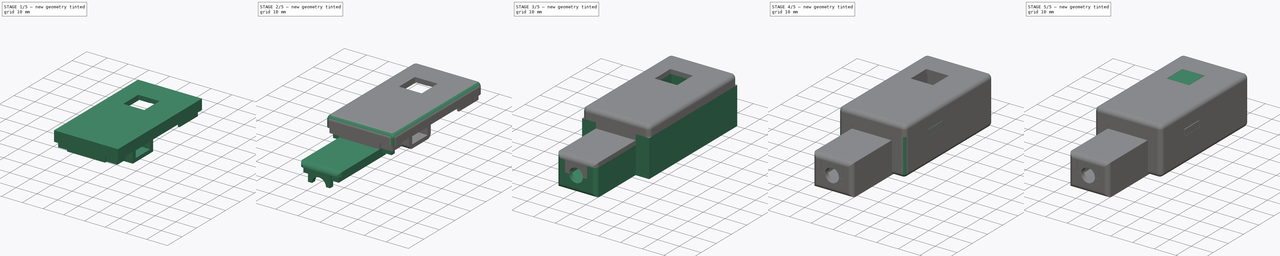
[diagram: build sequence overview — one tinted view per stage of 5, left to right]
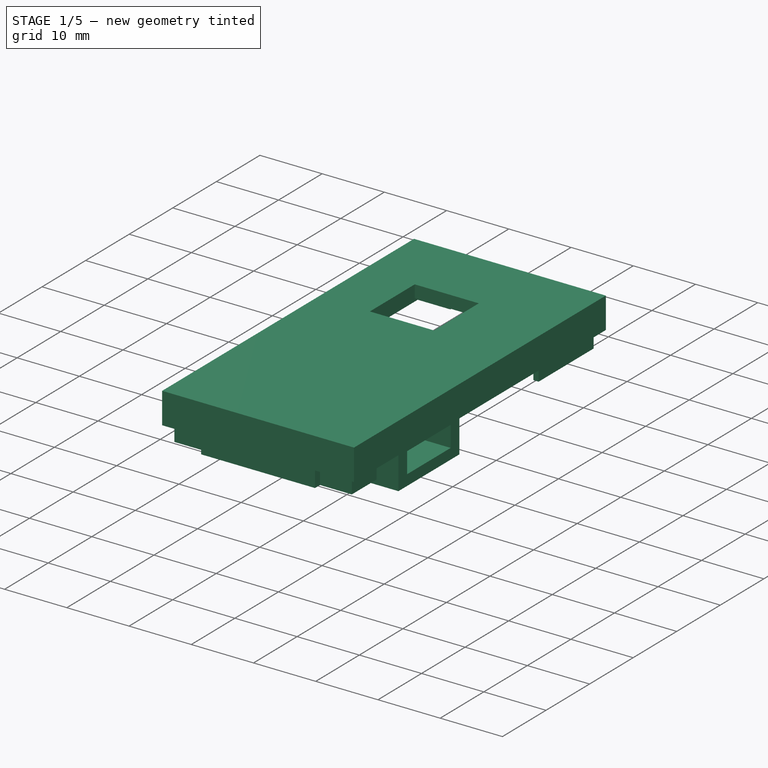
[diagram: stage 1 of 5 — iso view after this stage's code; geometry added in this stage tinted green]
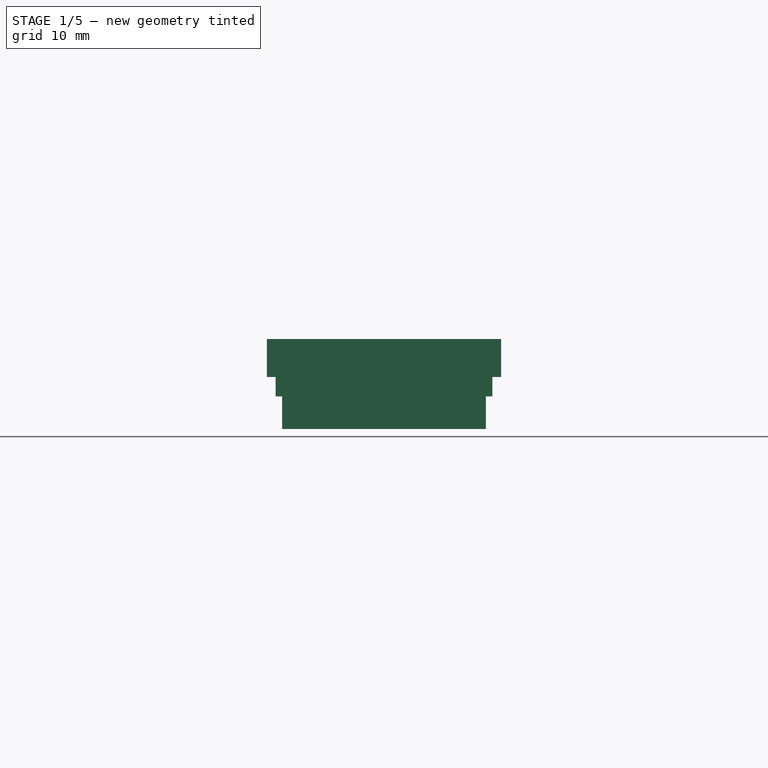
[diagram: stage 1 of 5 — front view after this stage's code; geometry added in this stage tinted green]
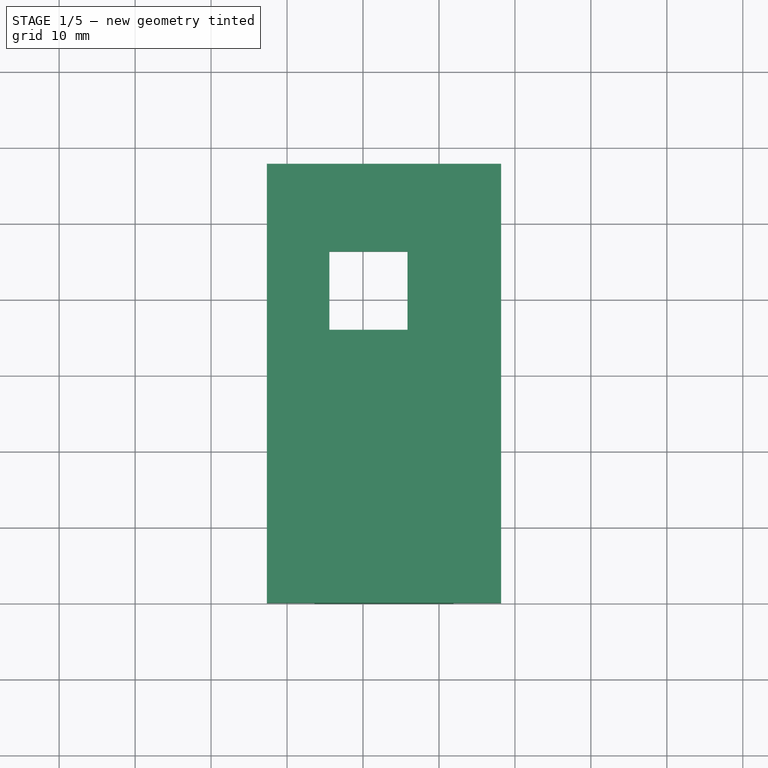
[diagram: stage 1 of 5 — top view after this stage's code; geometry added in this stage tinted green]
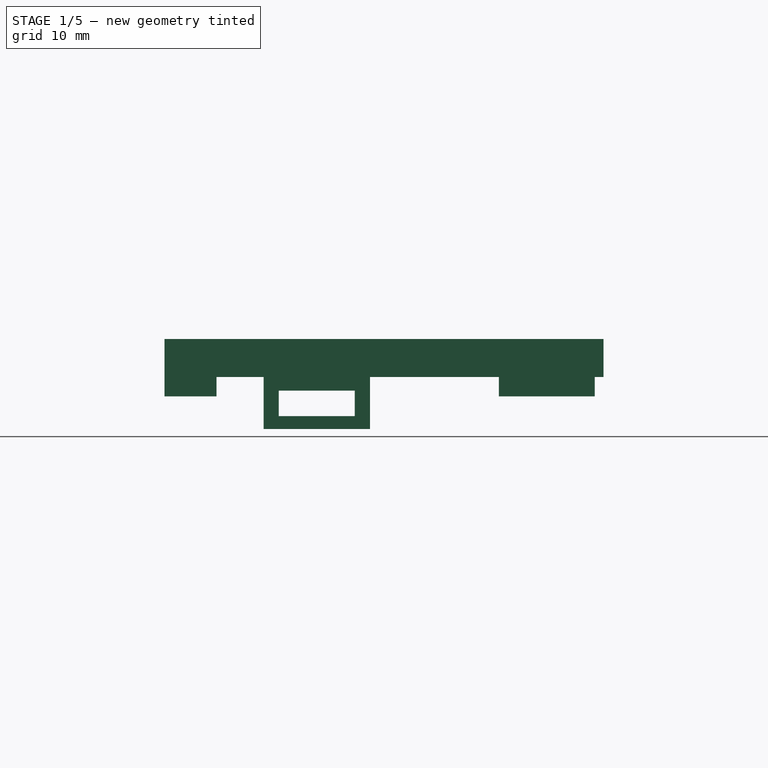
[diagram: stage 1 of 5 — right view after this stage's code; geometry added in this stage tinted green]
FCSTD DOCUMENT  (FreeCAD 0.18R4 (GitTag))
Label: Case
License: All rights reserved
LicenseURL: http://en.wikipedia.org/wiki/All_rights_reserved
objects: Sketcher::SketchObject×32, PartDesign::Pad×21, PartDesign::Pocket×11, PartDesign::Body×6, PartDesign::Fillet×4, Spreadsheet::Sheet×1
note: 106 computed .brp shape members not serialized (recipe doc carries the construction recipe); baked Part::Feature solids carry a one-line shape summary decoded from their .brp

FEATURE [Sketcher::SketchObject] Sketch011  label="CaseBSketch1"
  AttachmentOffset = pos=(0,0,12) rot=(0,0,1;0rad)
  MapMode = 5
  Placement = pos=(0,0,12) rot=(0,0,1;0rad)
  Support = -> [XY_Plane002]
  expr: Constraints[11] = CaseASketch1.Constraints.HEIGHT
  expr: Constraints[10] = CaseASketch1.Constraints.WIDTH
  expr: Constraints[9] = CaseASketch1.Constraints.Y
  expr: Constraints[8] = CaseASketch1.Constraints.X
  expr: AttachmentOffset.Base.z = Params.TOTAL_D
  sketch-geometry (4):
    g0: LineSegment StartX=-2.65 StartY=47.75 StartZ=0 EndX=28.177 EndY=47.75 EndZ=0
    g1: LineSegment StartX=28.177 StartY=47.75 StartZ=0 EndX=28.177 EndY=-10.05 EndZ=0
    g2: LineSegment StartX=28.177 StartY=-10.05 StartZ=0 EndX=-2.65 EndY=-10.05 EndZ=0
    g3: LineSegment StartX=-2.65 StartY=-10.05 StartZ=0 EndX=-2.65 EndY=47.75 EndZ=0
  constraints (12):
    c: Coincident(g0,g1)
    c: Coincident(g1,g2)
    c: Coincident(g2,g3)
    c: Coincident(g3,g0)
    c: Horizontal(g0)
    c: Horizontal(g2)
    c: Vertical(g1)
    c: Vertical(g3)
    c: DistanceX(g2,g-1) = 2.65
    c: DistanceY(g2,g-1) = 10.05
    c: DistanceX(g0,g0) = 30.827
    c: DistanceY(g1,g1) = 57.8
FEATURE [PartDesign::Pad] Pad007  label="CaseBPad1"
  Length = 5
  Length2 = 100
  Profile = -> Sketch011
  Type = 0
  expr: Length = Params.SWITCH_D
FEATURE [Sketcher::SketchObject] Sketch012  label="CaseBVSketch2"
  AttachmentOffset = pos=(0,0,17) rot=(0,0,1;0rad)
  MapMode = 5
  Placement = pos=(0,0,17) rot=(0,0,1;0rad)
  Support = -> [XY_Plane002]
  expr: Constraints[11] = Params.SWITCH_W + 2 * Params.GAP_XY
  expr: Constraints[10] = Params.SWITCH_H + 2 * Params.GAP_XY
  expr: Constraints[9] = Params.PIN_Y + Params.SWITCH_Y - Params.GAP_XY
  expr: Constraints[8] = Params.PIN_X + Params.SWITCH_X - Params.GAP_XY
  expr: AttachmentOffset.Base.z = Params.TOTAL_D + Params.SWITCH_D
  sketch-geometry (4):
    g0: LineSegment StartX=5.565 StartY=36.185 StartZ=0 EndX=15.865 EndY=36.185 EndZ=0
    g1: LineSegment StartX=15.865 StartY=36.185 StartZ=0 EndX=15.865 EndY=25.885 EndZ=0
    g2: LineSegment StartX=15.865 StartY=25.885 StartZ=0 EndX=5.565 EndY=25.885 EndZ=0
    g3: LineSegment StartX=5.565 StartY=25.885 StartZ=0 EndX=5.565 EndY=36.185 EndZ=0
  constraints (12):
    c: Coincident(g0,g1)
    c: Coincident(g1,g2)
    c: Coincident(g2,g3)
    c: Coincident(g3,g0)
    c: Horizontal(g0)
    c: Horizontal(g2)
    c: Vertical(g1)
    c: Vertical(g3)
    c: DistanceX(g-1,g2) = 5.565
    c: DistanceY(g-1,g2) = 25.885
    c: DistanceY(g3,g3) = 10.3
    c: DistanceX(g0,g0) = 10.3
FEATURE [PartDesign::Pocket] Pocket004  label="CaseBPocket1"
  BaseFeature = -> Pad007
  Length = 5
  Length2 = 100
  Profile = -> Sketch012
  Type = 1
FEATURE [Sketcher::SketchObject] Sketch013  label="CaseBSketch3"
  AttachmentOffset = pos=(0,0,15) rot=(0,0,1;0rad)
  MapMode = 5
  Placement = pos=(0,0,15) rot=(0,0,1;0rad)
  Support = -> [XY_Plane002]
  expr: Constraints[11] = CaseASketch1.Constraints.HEIGHT - 2 * Params.WALL
  expr: Constraints[10] = CaseASketch1.Constraints.WIDTH - 2 * Params.WALL
  expr: Constraints[9] = CaseASketch1.Constraints.X - Params.WALL
  expr: Constraints[8] = CaseASketch1.Constraints.Y - Params.WALL
  expr: AttachmentOffset.Base.z = Params.TOTAL_D + Params.SWITCH_D - Params.WALL
  sketch-geometry (4):
    g0: LineSegment StartX=-0.65 StartY=45.75 StartZ=0 EndX=26.177 EndY=45.75 EndZ=0
    g1: LineSegment StartX=26.177 StartY=45.75 StartZ=0 EndX=26.177 EndY=-8.05 EndZ=0
    g2: LineSegment StartX=26.177 StartY=-8.05 StartZ=0 EndX=-0.65 EndY=-8.05 EndZ=0
    g3: LineSegment StartX=-0.65 StartY=-8.05 StartZ=0 EndX=-0.65 EndY=45.75 EndZ=0
  constraints (12):
    c: Coincident(g0,g1)
    c: Coincident(g1,g2)
    c: Coincident(g2,g3)
    c: Coincident(g3,g0)
    c: Horizontal(g0)
    c: Horizontal(g2)
    c: Vertical(g1)
    c: Vertical(g3)
    c: DistanceY(g2,g-1) = 8.05
    c: DistanceX(g2,g-1) = 0.65
    c: DistanceX(g2,g2) = 26.827
    c: DistanceY(g1,g1) = 53.8
FEATURE [PartDesign::Pocket] Pocket005  label="CaseBPocket2"
  BaseFeature = -> Pocket004
  Length = 5
  Length2 = 100
  Profile = -> Sketch013
  Type = 1
FEATURE [Sketcher::SketchObject] Sketch014  label="CaseBSketch4"
  AttachmentOffset = pos=(0,0,12) rot=(0,0,1;0rad)
  MapMode = 5
  Placement = pos=(0,0,12) rot=(0,0,1;0rad)
  Support = -> [XY_Plane002]
  expr: Constraints[43] = CaseASketch4.Constraints.LATCH_H2 - 2 * Params.GAP_XY
  expr: Constraints[36] = CaseASketch4.Constraints.LATCH_W - 2 * Params.GAP_XY
  expr: AttachmentOffset.Base.z = Params.TOTAL_D
  expr: Constraints[42] = CaseASketch4.Constraints.LATCH_H - 2 * Params.GAP_XY
  expr: Constraints[35] = Params.SPACE_XY + Params.GAP_XY
  expr: Constraints[41] = Params.BOARD_W + 2 * (Params.SPACE_XY + Params.GAP_XY)
  expr: Constraints[32] = Params.WALL / 2 - Params.GAP_XY
  expr: Constraints[40] = CaseASketch4.Constraints.LATCH_Y2 - Params.GAP_XY
  expr: Constraints[39] = CaseASketch4.Constraints.LATCH_Y + Params.GAP_XY
  sketch-geometry (16):
    g0: LineSegment StartX=-1.5 StartY=33.975 StartZ=0 EndX=-0.65 EndY=33.975 EndZ=0
    g1: LineSegment StartX=-0.65 StartY=33.975 StartZ=0 EndX=-0.65 EndY=45.75 EndZ=0
    g2: LineSegment StartX=-0.65 StartY=45.75 StartZ=0 EndX=4.58175 EndY=45.75 EndZ=0
    g3: LineSegment StartX=4.58175 StartY=45.75 StartZ=0 EndX=4.58175 EndY=46.6 EndZ=0
    g4: LineSegment StartX=4.58175 StartY=46.6 StartZ=0 EndX=-1.5 EndY=46.6 EndZ=0
    g5: LineSegment StartX=-1.5 StartY=46.6 StartZ=0 EndX=-1.5 EndY=33.975 EndZ=0
    g6: LineSegment StartX=20.9453 StartY=46.6 StartZ=0 EndX=27.027 EndY=46.6 EndZ=0
    g7: LineSegment StartX=27.027 StartY=46.6 StartZ=0 EndX=27.027 EndY=33.975 EndZ=0
    g8: LineSegment StartX=27.027 StartY=33.975 StartZ=0 EndX=26.177 EndY=33.975 EndZ=0
    g9: LineSegment StartX=26.177 StartY=33.975 StartZ=0 EndX=26.177 EndY=45.75 EndZ=0
    g10: LineSegment StartX=26.177 StartY=45.75 StartZ=0 EndX=20.9453 EndY=45.75 EndZ=0
    g11: LineSegment StartX=20.9453 StartY=45.75 StartZ=0 EndX=20.9453 EndY=46.6 EndZ=0
    g12: LineSegment StartX=-1.5 StartY=-3.2 StartZ=0 EndX=-1.5 EndY=-8.9 EndZ=0
    g13: LineSegment StartX=-1.5 StartY=-3.2 StartZ=0 EndX=27.027 EndY=-3.2 EndZ=0
    g14: LineSegment StartX=27.027 StartY=-3.2 StartZ=0 EndX=27.027 EndY=-8.9 EndZ=0
    g15: LineSegment StartX=27.027 StartY=-8.9 StartZ=0 EndX=-1.5 EndY=-8.9 EndZ=0
  constraints (48):
    c: Horizontal(g0)
    c: Coincident(g0,g1)
    c: Vertical(g1)
    c: Coincident(g1,g2)
    c: Horizontal(g2)
    c: Coincident(g2,g3)
    c: Vertical(g3)
    c: Coincident(g3,g4)
    c: Horizontal(g4)
    c: Coincident(g4,g5)
    c: Vertical(g5)
    c: Coincident(g0,g5)
    c: Horizontal(g6)
    c: Coincident(g6,g7)
    c: Vertical(g7)
    c: Coincident(g7,g8)
    c: Horizontal(g8)
    c: Coincident(g8,g9)
    c: Vertical(g9)
    c: Coincident(g9,g10)
    c: Horizontal(g10)
    c: Coincident(g10,g11)
    c: Coincident(g11,g6)
    c: Vertical(g11)
    c: Vertical(g12)
    c: Coincident(g13,g14)
    c: Vertical(g14)
    c: Coincident(g14,g15)
    c: Horizontal(g15)
    c: Horizontal(g13)
    c: Equal(g3,g11)
    c: Horizontal(g2,g10)
    c: DistanceX(g0,g0) = 0.85
    c: Equal(g0,g3)
    c: Equal(g11,g8)
    c: DistanceX(g0,g-1) = 0.65
    c: DistanceX(g4,g4) = 6.08175
    c: Equal(g6,g4)
    c: Horizontal(g0,g8)
    c: DistanceY(g-1,g0) = 33.975
    c: DistanceY(g-1,g4) = 46.6
    c: DistanceX(g0,g8) = 26.827
    c: DistanceY(g12,g4) = 55.5
    c: DistanceY(g12,g12) = 5.7
    c: Coincident(g15,g12)
    c: Coincident(g12,g13)
    c: Vertical(g12,g0)
    c: Vertical(g13,g7)
FEATURE [PartDesign::Pad] Pad008  label="CaseBPad2"
  BaseFeature = -> Pocket005
  Length = 2.55
  Length2 = 100
  Profile = -> Sketch014
  Reversed = true
  Type = 0
  expr: Length = Params.CASE_A_L + Params.GAP_Z
FEATURE [Sketcher::SketchObject] Sketch015  label="CaseBSketch5"
  AttachmentOffset = pos=(0,0,9.45) rot=(0,0,1;0rad)
  MapMode = 5
  Placement = pos=(0,0,9.45) rot=(0,0,1;0rad)
  Support = -> [XY_Plane002]
  expr: Constraints[11] = Params.USB_H - Params.USB_Y + Params.SPACE_XY + Params.GAP_XY + 2 * Params.WALL
  expr: Constraints[10] = CaseASketch2.Constraints.EDGE_W - Params.SPACE_XY
  expr: Constraints[9] = Params.BOARD_W + 2 * Params.SPACE_XY - 2 * CaseASketch2.Constraints.EDGE_W
  expr: Constraints[8] = Params.WALL
  expr: AttachmentOffset.Base.z = Params.TOTAL_D - Params.CASE_A_L - Params.GAP_Z
  sketch-geometry (4):
    g0: LineSegment StartX=3.6135 StartY=-10.05 StartZ=0 EndX=21.9135 EndY=-10.05 EndZ=0
    g1: LineSegment StartX=21.9135 StartY=-10.05 StartZ=0 EndX=21.9135 EndY=-8.05 EndZ=0
    g2: LineSegment StartX=21.9135 StartY=-8.05 StartZ=0 EndX=3.6135 EndY=-8.05 EndZ=0
    g3: LineSegment StartX=3.6135 StartY=-8.05 StartZ=0 EndX=3.6135 EndY=-10.05 EndZ=0
  constraints (12):
    c: Coincident(g0,g1)
    c: Coincident(g1,g2)
    c: Coincident(g2,g3)
    c: Coincident(g3,g0)
    c: Horizontal(g0)
    c: Horizontal(g2)
    c: Vertical(g1)
    c: Vertical(g3)
    c: DistanceY(g3,g3) = 2
    c: DistanceX(g2,g2) = 18.3
    c: DistanceX(g-1,g2) = 3.6135
    c: DistanceY(g2,g-1) = 8.05
FEATURE [PartDesign::Pad] Pad009  label="CaseBPad3"
  BaseFeature = -> Pad008
  Length = 2.55
  Length2 = 100
  Profile = -> Sketch015
  Type = 0
  expr: Length = Params.CASE_A_L + Params.GAP_Z
FEATURE [Sketcher::SketchObject] Sketch017  label="CaseBSketch6"
  AttachmentOffset = pos=(0,0,-0.65) rot=(0,0,1;0rad)
  MapMode = 5
  Placement = pos=(-0.65,1e-16,-1e-16) rot=(0.57735,0.57735,0.57735;2.0944rad)
  Support = -> [YZ_Plane002]
  expr: Constraints[23] = Params.WALL
  expr: Constraints[21] = Params.TOTAL_D + Params.SWITCH_D - Params.WALL
  expr: Constraints[20] = Params.BOARD_D + Params.TF_D + Params.GAP_Z + 0.3mm
  expr: Constraints.INNER_W = 5 * Params.WALL
  expr: Constraints[18] = Params.CASE_A_LY
  expr: Constraints.OUTER_W = Constraints.INNER_W + 2 * Params.WALL
  expr: Constraints[17] = 1.5 * Params.WALL + 3 * Params.GAP_Z + Params.CASE_A_BL
  expr: Constraints[16] = Params.TOTAL_D - Params.WALL + Params.CASE_A_BL
  expr: AttachmentOffset.Base.z = -(Params.SPACE_XY + Params.GAP_XY)
  sketch-geometry (8):
    g0: LineSegment StartX=3 StartY=15 StartZ=0 EndX=17 EndY=15 EndZ=0
    g1: LineSegment StartX=17 StartY=15 StartZ=0 EndX=17 EndY=5.15 EndZ=0
    g2: LineSegment StartX=17 StartY=5.15 StartZ=0 EndX=3 EndY=5.15 EndZ=0
    g3: LineSegment StartX=3 StartY=5.15 StartZ=0 EndX=3 EndY=15 EndZ=0
    g4: LineSegment StartX=5 StartY=10.2 StartZ=0 EndX=15 EndY=10.2 EndZ=0
    g5: LineSegment StartX=15 StartY=10.2 StartZ=0 EndX=15 EndY=6.85 EndZ=0
    g6: LineSegment StartX=15 StartY=6.85 StartZ=0 EndX=5 EndY=6.85 EndZ=0
    g7: LineSegment StartX=5 StartY=6.85 StartZ=0 EndX=5 EndY=10.2 EndZ=0
  constraints (24):
    c: Coincident(g0,g1)
    c: Coincident(g1,g2)
    c: Coincident(g2,g3)
    c: Coincident(g3,g0)
    c: Horizontal(g0)
    c: Horizontal(g2)
    c: Vertical(g1)
    c: Vertical(g3)
    c: Coincident(g4,g5)
    c: Coincident(g5,g6)
    c: Coincident(g6,g7)
    c: Coincident(g7,g4)
    c: Horizontal(g4)
    c: Horizontal(g6)
    c: Vertical(g5)
    c: Vertical(g7)
    c: DistanceY(g-1,g4) = 10.2
    c: DistanceY(g7,g7) = 3.35
    c: DistanceX(g-1,g6) = 5
    c: DistanceX(g6,g6) = 10  'INNER_W'
    c: DistanceY(g-1,g2) = 5.15
    c: DistanceY(g-1,g0) = 15
    c: DistanceX(g0,g0) = 14  'OUTER_W'
    c: DistanceX(g2,g6) = 2
FEATURE [PartDesign::Pad] Pad010  label="CaseBPad4"
  BaseFeature = -> Pad009
  Length = 26.827
  Length2 = 100
  Profile = -> Sketch017
  Type = 0
  expr: Length = Params.BOARD_W + 2 * (Params.SPACE_XY + Params.GAP_XY)
FEATURE [Sketcher::SketchObject] Sketch020  label="CaseBSketch7"
  AttachmentOffset = pos=(0,0,16.95) rot=(0,0,1;0rad)
  MapMode = 5
  Placement = pos=(0,0,16.95) rot=(0,0,1;0rad)
  Support = -> [XY_Plane002]
  expr: Constraints[11] = Params.LED_H
  expr: Constraints[10] = Params.LED_W
  expr: Constraints[9] = Params.PIN_Y + Params.LED_Y
  expr: Constraints[8] = Params.PIN_X + Params.LED_X
  expr: AttachmentOffset.Base.z = Params.TOTAL_D + Params.SWITCH_D - Params.GAP_Z
  sketch-geometry (4):
    g0: LineSegment StartX=21.61 StartY=43.454 StartZ=0 EndX=25.11 EndY=43.454 EndZ=0
    g1: LineSegment StartX=25.11 StartY=43.454 StartZ=0 EndX=25.11 EndY=40.654 EndZ=0
    g2: LineSegment StartX=25.11 StartY=40.654 StartZ=0 EndX=21.61 EndY=40.654 EndZ=0
    g3: LineSegment StartX=21.61 StartY=40.654 StartZ=0 EndX=21.61 EndY=43.454 EndZ=0
  constraints (12):
    c: Coincident(g0,g1)
    c: Coincident(g1,g2)
    c: Coincident(g2,g3)
    c: Coincident(g3,g0)
    c: Horizontal(g0)
    c: Horizontal(g2)
    c: Vertical(g1)
    c: Vertical(g3)
    c: DistanceX(g-1,g2) = 21.61
    c: DistanceY(g-1,g2) = 40.654
    c: DistanceX(g2,g2) = 3.5
    c: DistanceY(g1,g1) = 2.8
FEATURE [PartDesign::Pocket] Pocket007  label="CaseBPocket3"
  BaseFeature = -> Pad010
  Length = 5
  Length2 = 100
  Profile = -> Sketch020
  Refine = true
  Type = 1
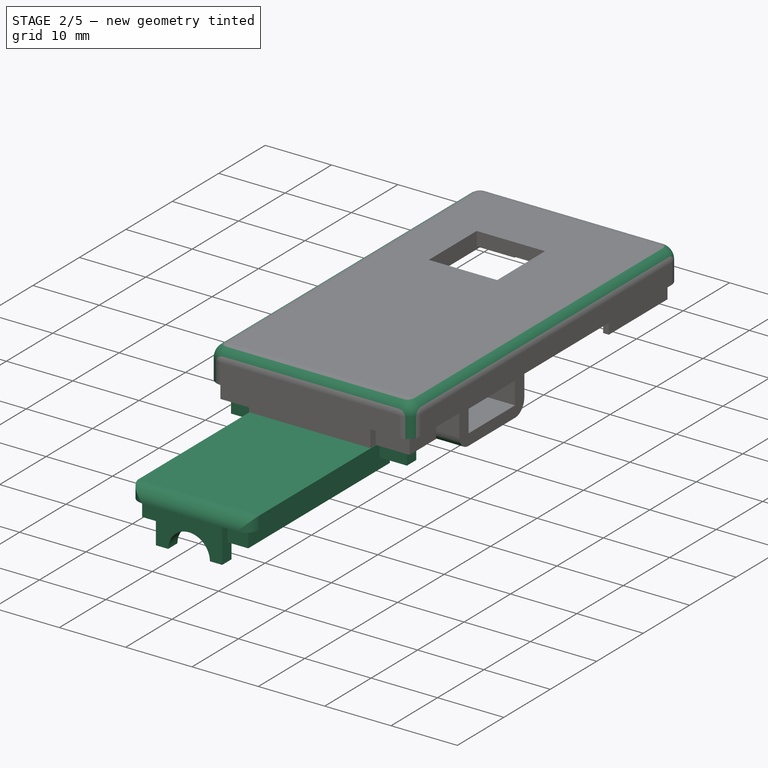
[diagram: stage 2 of 5 — iso view after this stage's code; geometry added in this stage tinted green]
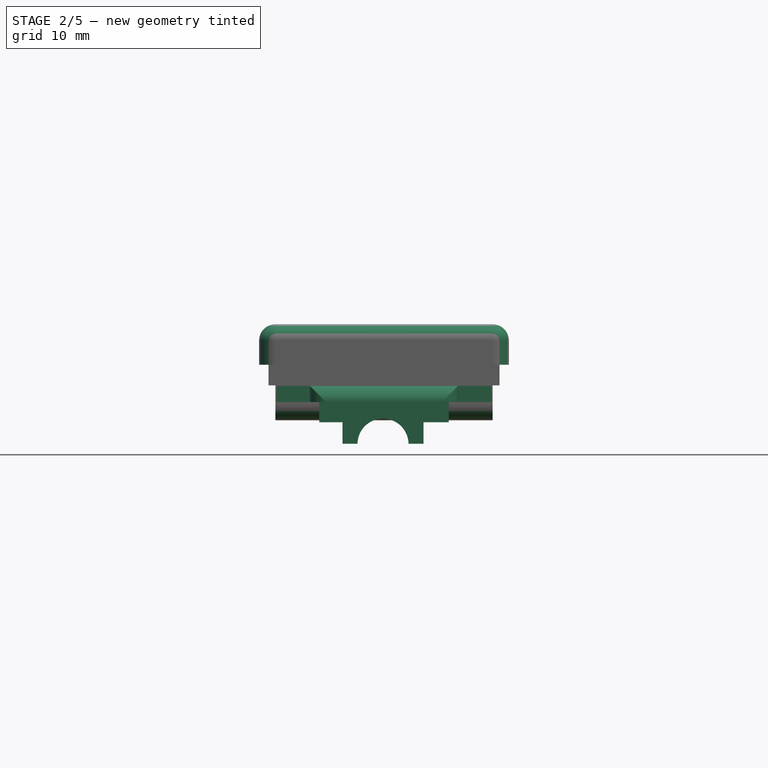
[diagram: stage 2 of 5 — front view after this stage's code; geometry added in this stage tinted green]
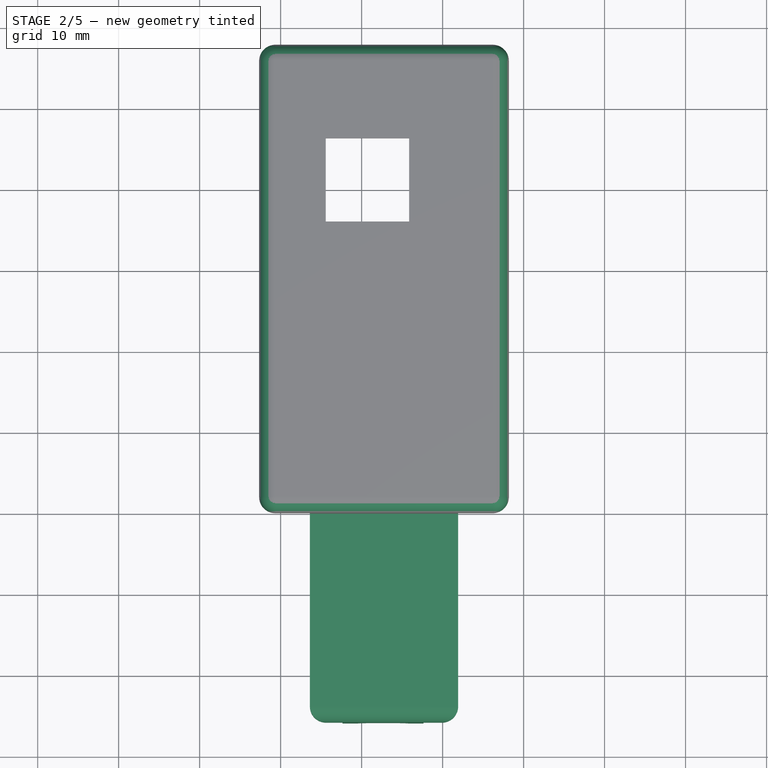
[diagram: stage 2 of 5 — top view after this stage's code; geometry added in this stage tinted green]
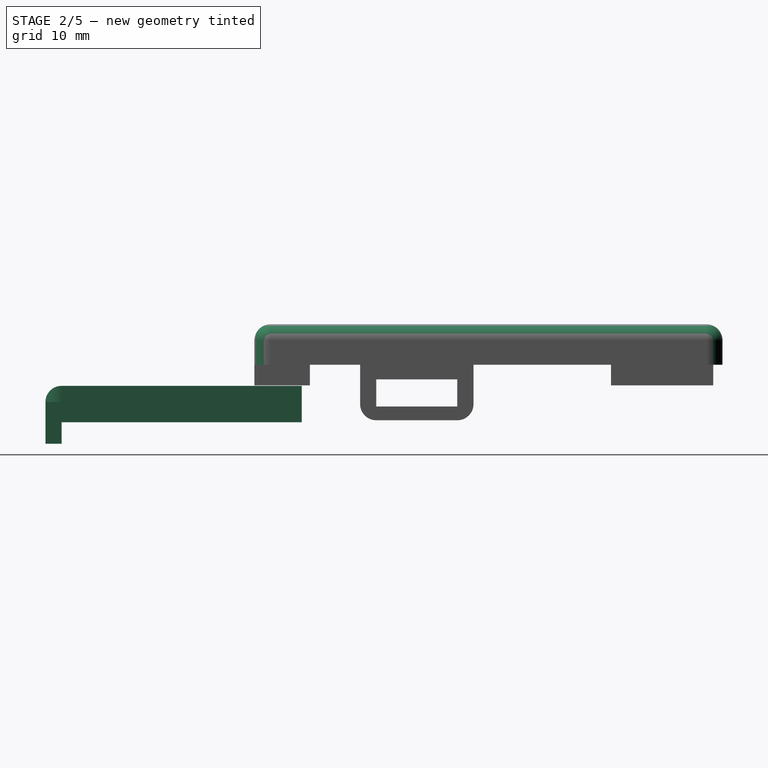
[diagram: stage 2 of 5 — right view after this stage's code; geometry added in this stage tinted green]
FEATURE [Sketcher::SketchObject] Sketch026  label="ConBSketch1"
  AttachmentOffset = pos=(0,0,7.4) rot=(0,0,1;0rad)
  MapMode = 5
  Placement = pos=(0,0,7.4) rot=(0,0,1;0rad)
  Support = -> [XY_Plane007]
  expr: AttachmentOffset.Base.z = Params.TOTAL_D - Params.CASE_A_L - Params.WALL - 2 * Params.GAP_Z
  expr: Constraints[29] = Params.BOARD_W - 2 * Sketch022.Constraints.X
  expr: Constraints[21] = Params.BOARD_W
  expr: Constraints[28] = Sketch022.Constraints.H
  expr: Constraints[24] = Sketch022.Constraints.X + Params.SPACE_XY
  expr: Constraints[35] = Params.WALL
  expr: Constraints[18] = Params.WALL - Params.GAP_XY
  expr: Constraints[17] = Sketch022.Constraints.X
  expr: Constraints[22] = Sketch022.Constraints.X
  expr: Constraints[19] = Params.USB_H - Params.USB_Y + Params.SPACE_XY + 2 * Params.GAP_XY
  sketch-geometry (14):
    g0: LineSegment StartX=3.6135 StartY=-4.2 StartZ=0 EndX=3.6135 EndY=-6.05 EndZ=0
    g1: LineSegment StartX=3.6135 StartY=-6.05 StartZ=0 EndX=-0.5 EndY=-6.05 EndZ=0
    g2: LineSegment StartX=-0.5 StartY=-6.05 StartZ=0 EndX=-0.5 EndY=-8.05 EndZ=0
    g3: LineSegment StartX=-0.5 StartY=-8.05 StartZ=0 EndX=3.6135 EndY=-8.05 EndZ=0
    g4: LineSegment StartX=21.9135 StartY=-4.2 StartZ=0 EndX=21.9135 EndY=-6.05 EndZ=0
    g5: LineSegment StartX=21.9135 StartY=-6.05 StartZ=0 EndX=26.027 EndY=-6.05 EndZ=0
    g6: LineSegment StartX=26.027 StartY=-6.05 StartZ=0 EndX=26.027 EndY=-8.05 EndZ=0
    g7: LineSegment StartX=26.027 StartY=-8.05 StartZ=0 EndX=21.9135 EndY=-8.05 EndZ=0
    g8: LineSegment StartX=21.9135 StartY=-35.85 StartZ=0 EndX=3.6135 EndY=-35.85 EndZ=0
    g9: GeomPoint X=25.527 Y=0 Z=0
    g10: LineSegment StartX=3.6135 StartY=-4.2 StartZ=0 EndX=21.9135 EndY=-4.2 EndZ=0
    g11: GeomPoint X=12.7635 Y=0 Z=0
    g12: LineSegment StartX=21.9135 StartY=-8.05 StartZ=0 EndX=21.9135 EndY=-35.85 EndZ=0
    g13: LineSegment StartX=3.6135 StartY=-35.85 StartZ=0 EndX=3.6135 EndY=-8.05 EndZ=0
  constraints (39):
    c: Vertical(g0)
    c: Coincident(g0,g1)
    c: Horizontal(g1)
    c: Coincident(g1,g2)
    c: Vertical(g2)
    c: Coincident(g2,g3)
    c: Horizontal(g3)
    c: Vertical(g4)
    c: Coincident(g4,g5)
    c: Horizontal(g5)
    c: Coincident(g5,g6)
    c: Vertical(g6)
    c: Coincident(g6,g7)
    c: Horizontal(g7)
    c: Horizontal(g8)
    c: Equal(g1,g5)
    c: Equal(g4,g0)
    c: DistanceX(g-1,g0) = 3.6135
    c: DistanceY(g0,g0) = 1.85
    c: DistanceY(g0,g-1) = 4.2
    c: PointOnObject(g9,g-1)
    c: DistanceX(g-1,g9) = 25.527
    c: DistanceX(g4,g9) = 3.6135
    c: Vertical(g0,g3)
    c: DistanceX(g1,g1) = 4.1135
    c: Coincident(g10,g0)
    c: Horizontal(g10)
    c: Equal(g6,g2)
    c: DistanceY(g13,g0) = 31.65
    c: DistanceX(g13,g8) = 18.3
    c: Symmetric(g-1,g9,g11)
    c: Coincident(g12,g7)
    c: Vertical(g12)
    c: Coincident(g8,g12)
    c: Coincident(g13,g3)
    c: DistanceY(g6,g6) = 2
    c: Coincident(g10,g4)
    c: Coincident(g8,g13)
    c: Vertical(g13)
FEATURE [PartDesign::Pad] Pad016  label="ConBPad1"
  Length = 2
  Length2 = 100
  Profile = -> Sketch026
  Type = 0
  expr: Length = Params.WALL
FEATURE [Sketcher::SketchObject] Sketch027  label="ConBSketch2"
  AttachmentOffset = pos=(0,0,4.9) rot=(0,0,1;0rad)
  MapMode = 5
  Placement = pos=(0,0,4.9) rot=(0,0,1;0rad)
  Support = -> [XY_Plane007]
  expr: Constraints[20] = ConASketch1.Constraints.H - Params.WALL / 2 - Params.GAP_XY
  expr: Constraints[16] = Params.WALL / 2 - Params.GAP_XY
  expr: AttachmentOffset.Base.z = Params.TOTAL_D - 2 * Params.CASE_A_L - Params.WALL - 2 * Params.GAP_Z
  expr: Constraints[18] = Params.USB_H - Params.USB_Y + Params.SPACE_XY + 2 * Params.GAP_XY
  expr: Constraints[23] = Params.WALL / 2 - Params.GAP_XY
  expr: Constraints[19] = Params.BOARD_W - 2 * ConASketch1.Constraints.X - Params.WALL - 2 * Params.GAP_XY
  expr: Constraints[17] = ConASketch1.Constraints.X + Params.WALL / 2 + Params.GAP_XY
  sketch-geometry (8):
    g0: LineSegment StartX=4.7635 StartY=-4.2 StartZ=0 EndX=4.7635 EndY=-34.7 EndZ=0
    g1: LineSegment StartX=5.6135 StartY=-33.85 StartZ=0 EndX=5.6135 EndY=-4.2 EndZ=0
    g2: LineSegment StartX=5.6135 StartY=-4.2 StartZ=0 EndX=4.7635 EndY=-4.2 EndZ=0
    g3: LineSegment StartX=4.7635 StartY=-34.7 StartZ=0 EndX=20.7635 EndY=-34.7 EndZ=0
    g4: LineSegment StartX=20.7635 StartY=-34.7 StartZ=0 EndX=20.7635 EndY=-4.2 EndZ=0
    g5: LineSegment StartX=20.7635 StartY=-4.2 StartZ=0 EndX=19.9135 EndY=-4.2 EndZ=0
    g6: LineSegment StartX=19.9135 StartY=-4.2 StartZ=0 EndX=19.9135 EndY=-33.85 EndZ=0
    g7: LineSegment StartX=19.9135 StartY=-33.85 StartZ=0 EndX=5.6135 EndY=-33.85 EndZ=0
  constraints (24):
    c: Vertical(g0)
    c: Vertical(g1)
    c: Coincident(g1,g2)
    c: Coincident(g2,g0)
    c: Horizontal(g2)
    c: Horizontal(g3)
    c: Coincident(g3,g4)
    c: Vertical(g4)
    c: Coincident(g4,g5)
    c: Horizontal(g5)
    c: Coincident(g5,g6)
    c: Vertical(g6)
    c: Coincident(g6,g7)
    c: Horizontal(g7)
    c: Horizontal(g5,g1)
    c: Equal(g2,g5)
    c: DistanceX(g2,g2) = 0.85
    c: DistanceX(g-1,g0) = 4.7635
    c: DistanceY(g0,g-1) = 4.2
    c: DistanceX(g0,g3) = 16
    c: DistanceY(g0,g0) = 30.5
    c: Coincident(g1,g7)
    c: Coincident(g0,g3)
    c: DistanceY(g3,g6) = 0.85
FEATURE [PartDesign::Pad] Pad017  label="ConBPad2"
  BaseFeature = -> Pad016
  Length = 2.5
  Length2 = 100
  Profile = -> Sketch027
  Type = 0
  expr: Length = Params.CASE_A_L
FEATURE [PartDesign::Body] Body001  label="CaseA"
  Group = -> [Sketch006,Pad006,Sketch007,Pocket,Sketch009,Pocket002,Sketch010,Pocket003,Sketch016,Pocket006,Sketch019,Pad012,Fillet]
  Origin = -> Origin001
  Tip = -> Fillet
FEATURE [Sketcher::SketchObject] Sketch031  label="ConBSketch3"
  AttachmentOffset = pos=(0,0,5.7) rot=(0,0,1;0rad)
  MapMode = 5
  Placement = pos=(0,0,5.7) rot=(0,0,1;0rad)
  Support = -> [XY_Plane007]
  expr: Constraints[21] = 2 * Params.WALL
  expr: Constraints[20] = 2 * Params.WALL
  expr: Constraints[23] = 5 * Params.WALL
  expr: Constraints[19] = Params.BOARD_W - 2 * Sketch022.Constraints.X
  expr: Constraints[18] = Sketch022.Constraints.H
  expr: Constraints[22] = 3 * Params.WALL
  expr: Constraints[17] = Params.USB_H - Params.USB_Y + Params.SPACE_XY + 2 * Params.GAP_XY
  expr: Constraints[16] = Sketch022.Constraints.X
  expr: AttachmentOffset.Base.z = Params.BOARD_D + Params.USB_D / 2 + Params.USB_CON_D / 2
  sketch-geometry (8):
    g0: LineSegment StartX=7.6135 StartY=-10.2 StartZ=0 EndX=17.9135 EndY=-10.2 EndZ=0
    g1: LineSegment StartX=17.9135 StartY=-10.2 StartZ=0 EndX=17.9135 EndY=-25.85 EndZ=0
    g2: LineSegment StartX=17.9135 StartY=-25.85 StartZ=0 EndX=7.6135 EndY=-25.85 EndZ=0
    g3: LineSegment StartX=7.6135 StartY=-25.85 StartZ=0 EndX=7.6135 EndY=-10.2 EndZ=0
    g4: LineSegment [constr] StartX=3.6135 StartY=-4.2 StartZ=0 EndX=21.9135 EndY=-4.2 EndZ=0
    g5: LineSegment [constr] StartX=21.9135 StartY=-4.2 StartZ=0 EndX=21.9135 EndY=-35.85 EndZ=0
    g6: LineSegment [constr] StartX=21.9135 StartY=-35.85 StartZ=0 EndX=3.6135 EndY=-35.85 EndZ=0
    g7: LineSegment [constr] StartX=3.6135 StartY=-35.85 StartZ=0 EndX=3.6135 EndY=-4.2 EndZ=0
  constraints (24):
    c: Coincident(g0,g1)
    c: Coincident(g1,g2)
    c: Coincident(g2,g3)
    c: Coincident(g3,g0)
    c: Horizontal(g0)
    c: Horizontal(g2)
    c: Vertical(g1)
    c: Vertical(g3)
    c: Coincident(g4,g5)
    c: Coincident(g5,g6)
    c: Coincident(g6,g7)
    c: Coincident(g7,g4)
    c: Horizontal(g4)
    c: Horizontal(g6)
    c: Vertical(g5)
    c: Vertical(g7)
    c: DistanceX(g-1,g4) = 3.6135
    c: DistanceY(g4,g-1) = 4.2
    c: DistanceY(g5,g5) = 31.65
    c: DistanceX(g6,g6) = 18.3
    c: DistanceX(g6,g2) = 4
    c: DistanceX(g1,g5) = 4
    c: DistanceY(g0,g4) = 6
    c: DistanceY(g6,g2) = 10
FEATURE [PartDesign::Pad] Pad021  label="ConBPad3"
  BaseFeature = -> Pad017
  Length = 10
  Length2 = 100
  Profile = -> Sketch031
  Type = 2
FEATURE [Sketcher::SketchObject] Sketch036  label="ConBSketch4"
  AttachmentOffset = pos=(0,0,7.4) rot=(0,0,1;0rad)
  MapMode = 5
  Placement = pos=(0,0,7.4) rot=(0,0,1;0rad)
  Support = -> [XY_Plane007]
  expr: Constraints[11] = Params.WALL
  expr: Constraints[10] = Params.USB_CABLE_W + 2 * Params.WALL
  expr: Constraints[9] = ConASketch1.Constraints.Y + ConASketch1.Constraints.H - Params.WALL
  expr: Constraints[8] = Params.PIN_X + Params.USB_X + Params.USB_W / 2 - Params.USB_CABLE_W / 2 - Params.WALL
  expr: AttachmentOffset.Base.z = Params.TOTAL_D - Params.CASE_A_L - Params.WALL - 2 * Params.GAP_Z
  sketch-geometry (4):
    g0: LineSegment StartX=7.64 StartY=-33.85 StartZ=0 EndX=17.64 EndY=-33.85 EndZ=0
    g1: LineSegment StartX=17.64 StartY=-33.85 StartZ=0 EndX=17.64 EndY=-35.85 EndZ=0
    g2: LineSegment StartX=17.64 StartY=-35.85 StartZ=0 EndX=7.64 EndY=-35.85 EndZ=0
    g3: LineSegment StartX=7.64 StartY=-35.85 StartZ=0 EndX=7.64 EndY=-33.85 EndZ=0
  constraints (12):
    c: Coincident(g0,g1)
    c: Coincident(g1,g2)
    c: Coincident(g2,g3)
    c: Coincident(g3,g0)
    c: Horizontal(g0)
    c: Horizontal(g2)
    c: Vertical(g1)
    c: Vertical(g3)
    c: DistanceX(g-1,g0) = 7.64
    c: DistanceY(g0,g-1) = 33.85
    c: DistanceX(g2,g2) = 10
    c: DistanceY(g1,g1) = 2
FEATURE [PartDesign::Pad] Pad022  label="ConBPad4"
  BaseFeature = -> Pad021
  Length = 5.15
  Length2 = 100
  Profile = -> Sketch036
  Reversed = true
  Type = 0
  expr: Length = Params.TOTAL_D - Params.BOARD_D - Params.USB_D / 2 - Params.CASE_A_L - Params.WALL - 3 * Params.GAP_Z
FEATURE [Sketcher::SketchObject] Sketch037  label="ConBSketch5"
  AttachmentOffset = pos=(0,0,35.85) rot=(0,0,1;0rad)
  MapMode = 5
  Placement = pos=(0,-35.85,-8e-15) rot=(1,0,0;1.5708rad)
  Support = -> [XZ_Plane007]
  expr: Constraints[2] = Params.USB_CABLE_W + 2 * Params.GAP_XY
  expr: Constraints[1] = Params.BOARD_D + Params.USB_D / 2
  expr: Constraints[0] = Params.PIN_X + Params.USB_X + Params.USB_W / 2
  expr: AttachmentOffset.Base.z = Params.USB_H - Params.USB_Y + Params.SPACE_XY + 2 * Params.GAP_XY + Sketch022.Constraints.H
  sketch-geometry (1):
    g0: Circle CenterX=12.64 CenterY=2.2 CenterZ=0 NormalX=0 NormalY=0 NormalZ=1 AngleXU=0 Radius=3.15
  constraints (3):
    c: DistanceX(g-1,g0) = 12.64
    c: DistanceY(g-1,g0) = 2.2
    c: Diameter(g0) = 6.3
FEATURE [PartDesign::Pocket] Pocket013  label="ConBPocket1"
  BaseFeature = -> Pad022
  Length = 2
  Length2 = 100
  Profile = -> Sketch037
  Refine = true
  Type = 0
  expr: Length = Params.WALL
FEATURE [PartDesign::Body] Body006  label="ConA"
  Group = -> [Sketch022,Pad014,Sketch023,Pad015,Sketch024,Pocket008,Sketch034,Pocket011,Sketch035,Pocket012,Fillet005]
  Origin = -> Origin006
  Tip = -> Fillet005
FEATURE [PartDesign::Fillet] Fillet006  label="ConBFillet"
  Base = -> Pocket013 [Edge35,Edge61,Edge85]
  BaseFeature = -> Pocket013
  Radius = 1.99
  expr: Radius = Params.FILLET_OUT
FEATURE [PartDesign::Body] Body007  label="ConB"
  Group = -> [Sketch026,Pad016,Sketch027,Pad017,Sketch031,Pad021,Sketch036,Pad022,Sketch037,Pocket013,Fillet006]
  Origin = -> Origin007
  Tip = -> Fillet006
FEATURE [PartDesign::Fillet] Fillet007  label="CaseBFillet"
  Base = -> Pocket007 [Edge117,Edge114,Edge7,Edge5,Edge36,Edge4,Edge8,Edge10,Edge2,Edge1]
  BaseFeature = -> Pocket007
  Radius = 1.99
  expr: Radius = Params.FILLET_OUT
FEATURE [PartDesign::Body] Body002  label="CaseB"
  Group = -> [Sketch011,Pad007,Sketch012,Pocket004,Sketch013,Pocket005,Sketch014,Pad008,Sketch015,Pad009,Sketch017,Pad010,Sketch020,Pocket007,Fillet007]
  Origin = -> Origin002
  Tip = -> Fillet007
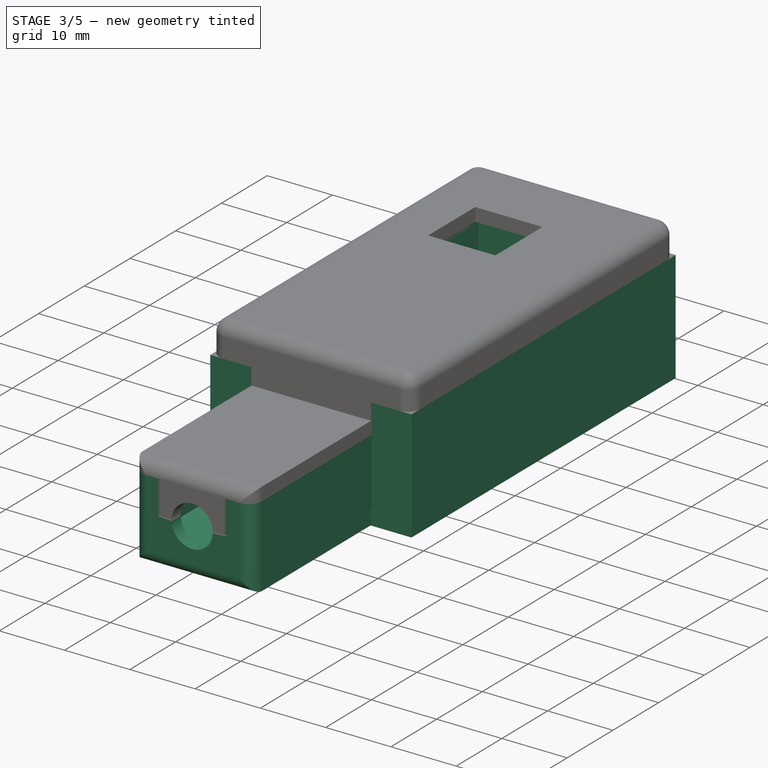
[diagram: stage 3 of 5 — iso view after this stage's code; geometry added in this stage tinted green]
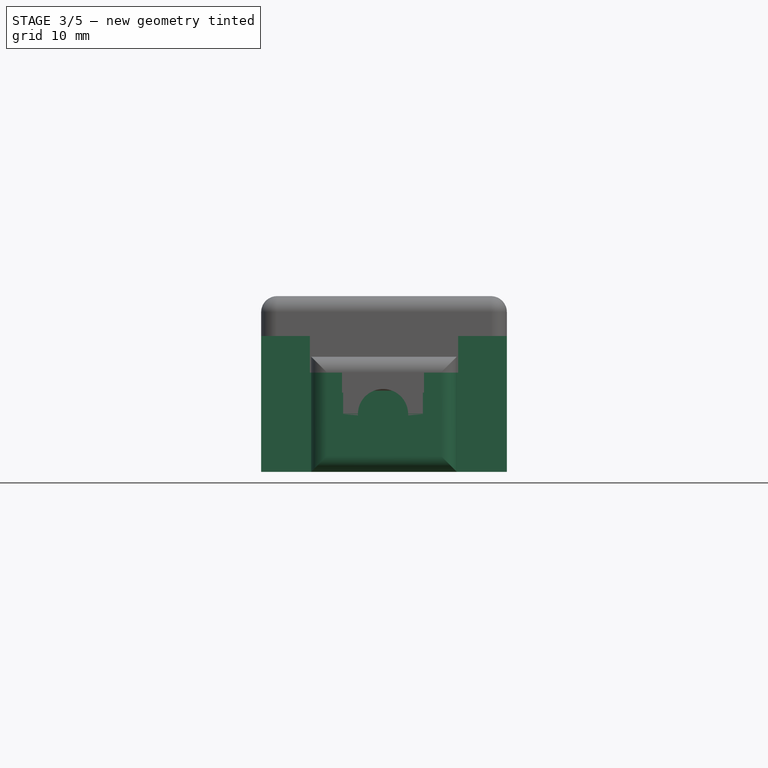
[diagram: stage 3 of 5 — front view after this stage's code; geometry added in this stage tinted green]
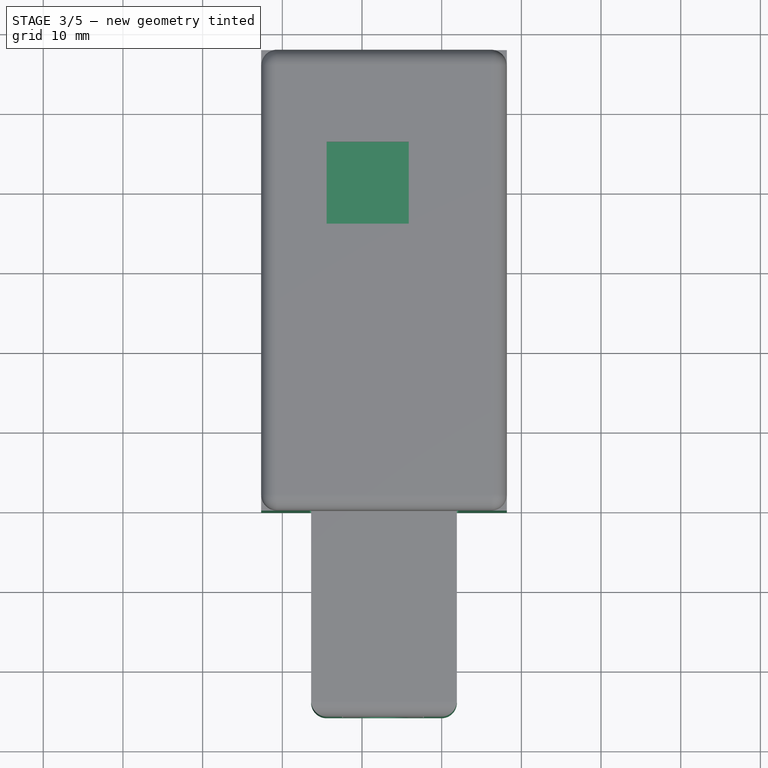
[diagram: stage 3 of 5 — top view after this stage's code; geometry added in this stage tinted green]
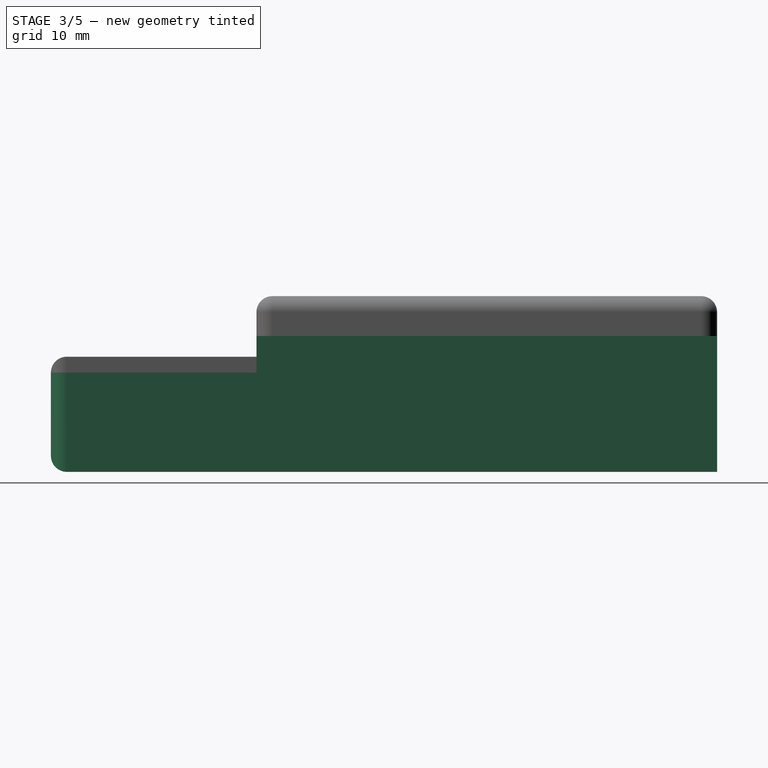
[diagram: stage 3 of 5 — right view after this stage's code; geometry added in this stage tinted green]
FEATURE [Sketcher::SketchObject] Sketch006  label="CaseASketch1"
  AttachmentOffset = pos=(0,0,-5.05) rot=(0,0,1;0rad)
  MapMode = 5
  Placement = pos=(0,0,-5.05) rot=(0,0,1;0rad)
  Support = -> [XY_Plane001]
  expr: Constraints.HEIGHT = Params.BOARD_H + Params.USB_H - Params.USB_Y + 4 * Params.WALL + 2 * (Params.SPACE_XY + Params.GAP_XY)
  expr: Constraints.Y = Params.USB_H - Params.USB_Y + 3 * Params.WALL + Params.SPACE_XY + Params.GAP_XY
  expr: Constraints.WIDTH = Params.BOARD_W + 2 * (Params.WALL + Params.SPACE_XY + Params.GAP_XY)
  expr: AttachmentOffset.Base.z = -(Params.WALL + Params.SPACE_Z + Params.GAP_Z)
  expr: Constraints.X = Params.WALL + Params.SPACE_XY + Params.GAP_XY
  sketch-geometry (4):
    g0: LineSegment StartX=-2.65 StartY=-10.05 StartZ=0 EndX=28.177 EndY=-10.05 EndZ=0
    g1: LineSegment StartX=28.177 StartY=-10.05 StartZ=0 EndX=28.177 EndY=47.75 EndZ=0
    g2: LineSegment StartX=28.177 StartY=47.75 StartZ=0 EndX=-2.65 EndY=47.75 EndZ=0
    g3: LineSegment StartX=-2.65 StartY=47.75 StartZ=0 EndX=-2.65 EndY=-10.05 EndZ=0
  constraints (12):
    c: Coincident(g0,g1)
    c: Coincident(g1,g2)
    c: Coincident(g2,g3)
    c: Coincident(g3,g0)
    c: Horizontal(g0)
    c: Horizontal(g2)
    c: Vertical(g1)
    c: Vertical(g3)
    c: DistanceX(g0,g-1) = 2.65  'X'
    c: DistanceY(g0,g-1) = 10.05  'Y'
    c: DistanceX(g0,g0) = 30.827  'WIDTH'
    c: DistanceY(g3,g3) = 57.8  'HEIGHT'
FEATURE [PartDesign::Pad] Pad006  label="CaseAPad1"
  Length = 17.05
  Length2 = 100
  Profile = -> Sketch006
  Type = 0
  expr: Length = Params.WALL + Params.SPACE_Z + Params.GAP_Z + Params.TOTAL_D
FEATURE [Sketcher::SketchObject] Sketch007  label="CaseASketch2"
  AttachmentOffset = pos=(0,0,12) rot=(0,0,1;0rad)
  MapMode = 5
  Placement = pos=(0,0,12) rot=(0,0,1;0rad)
  Support = -> [XY_Plane001]
  expr: Constraints.EDGE_W = (Params.BOARD_W - Params.USB_GAP_W - 2 * (Params.WALL + Params.SPACE_XY + Params.GAP_XY)) / 2
  expr: Constraints[43] = Params.WALL - Params.GAP_XY
  expr: Constraints[44] = Params.WALL - Params.GAP_XY
  expr: Constraints[8] = Params.USB_H - Params.USB_Y + Params.BOARD_H + 2 * (Params.SPACE_XY + Params.GAP_XY)
  expr: AttachmentOffset.Base.z = Params.TOTAL_D
  expr: Constraints[42] = Params.WALL + 2 * Params.GAP_XY
  expr: Constraints[7] = Params.BOARD_W + 2 * (Params.SPACE_XY + Params.GAP_XY)
  expr: Constraints[6] = Params.SPACE_XY + Params.GAP_XY
  expr: Constraints[5] = Params.USB_H - Params.USB_Y + Params.SPACE_XY + Params.GAP_XY
  sketch-geometry (16):
    g0: LineSegment StartX=26.177 StartY=-4.05 StartZ=0 EndX=26.177 EndY=45.75 EndZ=0
    g1: LineSegment StartX=26.177 StartY=45.75 StartZ=0 EndX=-0.65 EndY=45.75 EndZ=0
    g2: LineSegment StartX=-0.65 StartY=45.75 StartZ=0 EndX=-0.65 EndY=-4.05 EndZ=0
    g3: LineSegment StartX=-0.65 StartY=-4.05 StartZ=0 EndX=3.4635 EndY=-4.05 EndZ=0
    g4: LineSegment StartX=3.4635 StartY=-4.05 StartZ=0 EndX=3.4635 EndY=-5.9 EndZ=0
    g5: LineSegment StartX=3.4635 StartY=-5.9 StartZ=0 EndX=-0.65 EndY=-5.9 EndZ=0
    g6: LineSegment StartX=-0.65 StartY=-5.9 StartZ=0 EndX=-0.65 EndY=-8.2 EndZ=0
    g7: LineSegment StartX=-0.65 StartY=-8.2 StartZ=0 EndX=3.4635 EndY=-8.2 EndZ=0
    g8: LineSegment StartX=3.4635 StartY=-8.2 StartZ=0 EndX=3.4635 EndY=-10.05 EndZ=0
    g9: LineSegment StartX=3.4635 StartY=-10.05 StartZ=0 EndX=22.0635 EndY=-10.05 EndZ=0
    g10: LineSegment StartX=22.0635 StartY=-10.05 StartZ=0 EndX=22.0635 EndY=-8.2 EndZ=0
    g11: LineSegment StartX=22.0635 StartY=-8.2 StartZ=0 EndX=26.177 EndY=-8.2 EndZ=0
    g12: LineSegment StartX=26.177 StartY=-8.2 StartZ=0 EndX=26.177 EndY=-5.9 EndZ=0
    g13: LineSegment StartX=26.177 StartY=-5.9 StartZ=0 EndX=22.0635 EndY=-5.9 EndZ=0
    g14: LineSegment StartX=22.0635 StartY=-5.9 StartZ=0 EndX=22.0635 EndY=-4.05 EndZ=0
    g15: LineSegment StartX=22.0635 StartY=-4.05 StartZ=0 EndX=26.177 EndY=-4.05 EndZ=0
  constraints (48):
    c: Coincident(g0,g1)
    c: Coincident(g1,g2)
    c: Horizontal(g1)
    c: Vertical(g0)
    c: Vertical(g2)
    c: DistanceY(g2,g-1) = 4.05
    c: DistanceX(g2,g-1) = 0.65
    c: DistanceX(g2,g0) = 26.827
    c: DistanceY(g2,g2) = 49.8
    c: Horizontal(g0,g2)
    c: Horizontal(g3)
    c: Coincident(g3,g4)
    c: Vertical(g4)
    c: Coincident(g4,g5)
    c: Horizontal(g5)
    c: Coincident(g5,g6)
    c: Vertical(g6)
    c: Coincident(g6,g7)
    c: Horizontal(g7)
    c: Coincident(g7,g8)
    c: Vertical(g8)
    c: Coincident(g8,g9)
    c: Horizontal(g9)
    c: Coincident(g9,g10)
    c: Vertical(g10)
    c: Coincident(g10,g11)
    c: Horizontal(g11)
    c: Coincident(g11,g12)
    c: Vertical(g12)
    c: Coincident(g12,g13)
    c: Horizontal(g13)
    c: Coincident(g13,g14)
    c: Vertical(g14)
    c: Coincident(g14,g15)
    c: Coincident(g15,g0)
    c: Horizontal(g15)
    c: Coincident(g3,g2)
    c: Vertical(g13,g10)
    c: Vertical(g7,g4)
    c: Equal(g5,g13)
    c: Horizontal(g10,g7)
    c: Horizontal(g13,g4)
    c: DistanceY(g6,g6) = 2.3
    c: DistanceY(g4,g4) = 1.85
    c: DistanceY(g8,g8) = 1.85
    c: Equal(g3,g15)
    c: DistanceX(g3,g3) = 4.1135  'EDGE_W'
    c: Vertical(g5,g2)
FEATURE [PartDesign::Pocket] Pocket  label="CaseAPocket1"
  BaseFeature = -> Pad006
  Length = 15.05
  Length2 = 100
  Profile = -> Sketch007
  Type = 0
  expr: Length = Params.TOTAL_D + Params.SPACE_Z + Params.GAP_Z
FEATURE [Sketcher::SketchObject] Sketch022  label="ConASketch1"
  AttachmentOffset = pos=(0,0,-5.05) rot=(0,0,1;0rad)
  MapMode = 5
  Placement = pos=(0,0,-5.05) rot=(0,0,1;0rad)
  Support = -> [XY_Plane006]
  expr: Constraints.Y = Params.USB_H - Params.USB_Y + Params.SPACE_XY + 2 * Params.GAP_XY
  expr: Constraints.X = CaseASketch2.Constraints.EDGE_W - Params.SPACE_XY
  expr: AttachmentOffset.Base.z = -(Params.SPACE_Z + Params.WALL + Params.GAP_Z)
  sketch-geometry (5):
    g0: LineSegment StartX=3.6135 StartY=-35.85 StartZ=0 EndX=21.9135 EndY=-35.85 EndZ=0
    g1: LineSegment StartX=21.9135 StartY=-4.2 StartZ=0 EndX=3.6135 EndY=-4.2 EndZ=0
    g2: GeomPoint X=25.527 Y=0 Z=0
    g3: LineSegment StartX=3.6135 StartY=-35.85 StartZ=0 EndX=3.6135 EndY=-4.2 EndZ=0
    g4: LineSegment StartX=21.9135 StartY=-35.85 StartZ=0 EndX=21.9135 EndY=-4.2 EndZ=0
  constraints (14):
    c: Horizontal(g0)
    c: Horizontal(g1)
    c: DistanceY(g1,g-1) = 4.2  'Y'
    c: DistanceX(g-1,g1) = 3.6135  'X'
    c: PointOnObject(g2,g-1)
    c: DistanceX(g-1,g2) = 25.527
    c: DistanceX(g1,g2) = 3.6135
    c: DistanceX(g0,g0) = 18.3  'W'
    c: DistanceY(g0,g1) = 31.65  'H'
    c: Coincident(g3,g0)
    c: Vertical(g3)
    c: Coincident(g4,g0)
    c: Coincident(g3,g1)
    c: Coincident(g4,g1)
FEATURE [PartDesign::Pad] Pad014  label="ConAPad1"
  Length = 3.75
  Length2 = 100
  Profile = -> Sketch022
  Type = 0
  expr: Length = Params.WALL + Params.SPACE_Z + Params.BOARD_D + Params.USB_D / 2 - Params.USB_CON_D / 2 + Params.GAP_Z
FEATURE [Sketcher::SketchObject] Sketch023  label="ConASketch2"
  AttachmentOffset = pos=(0,0,-1.3) rot=(0,0,1;0rad)
  MapMode = 5
  Placement = pos=(0,0,-1.3) rot=(0,0,1;0rad)
  Support = -> [XY_Plane006]
  expr: AttachmentOffset.Base.z = Params.BOARD_D + Params.USB_D / 2 - Params.USB_CON_D / 2
  expr: Constraints[50] = Params.WALL
  expr: Constraints[36] = Params.BOARD_W - 2 * Sketch022.Constraints.X
  expr: Constraints[18] = Sketch022.Constraints.X
  expr: Constraints[23] = Params.BOARD_W
  expr: Constraints[19] = Params.WALL - Params.GAP_XY
  expr: Constraints[26] = Sketch022.Constraints.X + Params.SPACE_XY
  expr: Constraints[20] = Params.USB_H - Params.USB_Y + Params.SPACE_XY + 2 * Params.GAP_XY
  expr: Constraints[21] = Params.WALL
  expr: Constraints[24] = Sketch022.Constraints.X
  expr: Constraints[35] = Sketch022.Constraints.H
  sketch-geometry (18):
    g0: LineSegment StartX=3.6135 StartY=-4.2 StartZ=0 EndX=3.6135 EndY=-6.05 EndZ=0
    g1: LineSegment StartX=3.6135 StartY=-6.05 StartZ=0 EndX=-0.5 EndY=-6.05 EndZ=0
    g2: LineSegment StartX=-0.5 StartY=-6.05 StartZ=0 EndX=-0.5 EndY=-8.05 EndZ=0
    g3: LineSegment StartX=-0.5 StartY=-8.05 StartZ=0 EndX=3.6135 EndY=-8.05 EndZ=0
    g4: LineSegment StartX=21.9135 StartY=-4.2 StartZ=0 EndX=21.9135 EndY=-6.05 EndZ=0
    g5: LineSegment StartX=21.9135 StartY=-6.05 StartZ=0 EndX=26.027 EndY=-6.05 EndZ=0
    g6: LineSegment StartX=26.027 StartY=-6.05 StartZ=0 EndX=26.027 EndY=-8.05 EndZ=0
    g7: LineSegment StartX=26.027 StartY=-8.05 StartZ=0 EndX=21.9135 EndY=-8.05 EndZ=0
    g8: LineSegment StartX=21.9135 StartY=-35.85 StartZ=0 EndX=3.6135 EndY=-35.85 EndZ=0
    g9: LineSegment StartX=5.6135 StartY=-33.85 StartZ=0 EndX=19.9135 EndY=-33.85 EndZ=0
    g10: GeomPoint X=25.527 Y=0 Z=0
    g11: LineSegment StartX=3.6135 StartY=-4.2 StartZ=0 EndX=5.6135 EndY=-4.2 EndZ=0
    g12: LineSegment StartX=19.9135 StartY=-4.2 StartZ=0 EndX=21.9135 EndY=-4.2 EndZ=0
    g13: GeomPoint X=12.7635 Y=0 Z=0
    g14: LineSegment StartX=21.9135 StartY=-8.05 StartZ=0 EndX=21.9135 EndY=-35.85 EndZ=0
    g15: LineSegment StartX=19.9135 StartY=-4.2 StartZ=0 EndX=19.9135 EndY=-33.85 EndZ=0
    g16: LineSegment StartX=5.6135 StartY=-4.2 StartZ=0 EndX=5.6135 EndY=-33.85 EndZ=0
    g17: LineSegment StartX=3.6135 StartY=-35.85 StartZ=0 EndX=3.6135 EndY=-8.05 EndZ=0
  constraints (51):
    c: Vertical(g0)
    c: Coincident(g0,g1)
    c: Horizontal(g1)
    c: Coincident(g1,g2)
    c: Vertical(g2)
    c: Coincident(g2,g3)
    c: Horizontal(g3)
    c: Vertical(g4)
    c: Coincident(g4,g5)
    c: Horizontal(g5)
    c: Coincident(g5,g6)
    c: Vertical(g6)
    c: Coincident(g6,g7)
    c: Horizontal(g7)
    c: Horizontal(g8)
    c: Horizontal(g9)
    c: Equal(g1,g5)
    c: Equal(g4,g0)
    c: DistanceX(g-1,g0) = 3.6135
    c: DistanceY(g0,g0) = 1.85
    c: DistanceY(g0,g-1) = 4.2
    c: DistanceX(g0,g11) = 2
    c: PointOnObject(g10,g-1)
    c: DistanceX(g-1,g10) = 25.527
    c: DistanceX(g4,g10) = 3.6135
    c: Vertical(g0,g3)
    c: DistanceX(g1,g1) = 4.1135
    c: Coincident(g11,g0)
    c: Coincident(g12,g4)
    c: Horizontal(g12)
    c: Horizontal(g11)
    c: Equal(g12,g11)
    c: Horizontal(g12,g11)
    c: Equal(g2,g11)
    c: Equal(g6,g2)
    c: DistanceY(g17,g0) = 31.65
    c: DistanceX(g17,g8) = 18.3
    c: Symmetric(g-1,g10,g13)
    c: Coincident(g14,g7)
    c: Vertical(g14)
    c: Coincident(g8,g14)
    c: Coincident(g15,g12)
    c: Coincident(g15,g9)
    c: Vertical(g15)
    c: Coincident(g16,g11)
    c: Vertical(g16)
    c: Coincident(g17,g3)
    c: Coincident(g9,g16)
    c: Coincident(g8,g17)
    c: Vertical(g17)
    c: DistanceY(g8,g9) = 2
FEATURE [PartDesign::Pad] Pad015  label="ConAPad2"
  BaseFeature = -> Pad014
  Length = 8.7
  Length2 = 100
  Profile = -> Sketch023
  Type = 0
  expr: Length = Params.TOTAL_D - (Params.BOARD_D + Params.USB_D / 2 - Params.USB_CON_D / 2) - Params.CASE_A_L - Params.WALL - 2 * Params.GAP_Z
FEATURE [Sketcher::SketchObject] Sketch024  label="ConASketch3"
  AttachmentOffset = pos=(0,0,7.4) rot=(0,0,1;0rad)
  MapMode = 5
  Placement = pos=(0,0,7.4) rot=(0,0,1;0rad)
  Support = -> [XY_Plane006]
  expr: Constraints[11] = Sketch022.Constraints.H - Params.WALL / 2
  expr: Constraints[10] = Params.BOARD_W - 2 * Constraints.X
  expr: Constraints.X = Sketch022.Constraints.X + Params.WALL / 2
  expr: Constraints[8] = Params.USB_H - Params.USB_Y + Params.SPACE_XY + 2 * Params.GAP_XY
  expr: AttachmentOffset.Base.z = Params.TOTAL_D - Params.CASE_A_L - Params.WALL - 2 * Params.GAP_Z
  sketch-geometry (4):
    g0: LineSegment StartX=4.6135 StartY=-4.2 StartZ=0 EndX=20.9135 EndY=-4.2 EndZ=0
    g1: LineSegment StartX=20.9135 StartY=-4.2 StartZ=0 EndX=20.9135 EndY=-34.85 EndZ=0
    g2: LineSegment StartX=20.9135 StartY=-34.85 StartZ=0 EndX=4.6135 EndY=-34.85 EndZ=0
    g3: LineSegment StartX=4.6135 StartY=-34.85 StartZ=0 EndX=4.6135 EndY=-4.2 EndZ=0
  constraints (12):
    c: Coincident(g0,g1)
    c: Coincident(g1,g2)
    c: Coincident(g2,g3)
    c: Coincident(g3,g0)
    c: Horizontal(g0)
    c: Horizontal(g2)
    c: Vertical(g1)
    c: Vertical(g3)
    c: DistanceY(g0,g-1) = 4.2
    c: DistanceX(g-1,g0) = 4.6135  'X'
    c: DistanceX(g2,g2) = 16.3
    c: DistanceY(g3,g3) = 30.65
FEATURE [PartDesign::Pocket] Pocket008  label="ConAPocket1"
  BaseFeature = -> Pad015
  Length = 2.55
  Length2 = 100
  Profile = -> Sketch024
  Type = 0
  expr: Length = Params.CASE_A_L + Params.GAP_Z
FEATURE [Sketcher::SketchObject] Sketch034  label="ConASketch4"
  AttachmentOffset = pos=(0,0,7.4) rot=(0,0,1;0rad)
  MapMode = 5
  Placement = pos=(0,0,7.4) rot=(0,0,1;0rad)
  Support = -> [XY_Plane006]
  expr: Constraints[11] = Params.USB_CABLE_W + 2 * Params.GAP_XY + 2 * Params.WALL
  expr: Constraints[10] = Params.WALL
  expr: Constraints[9] = ConASketch1.Constraints.Y + ConASketch1.Constraints.H - Params.WALL
  expr: Constraints[8] = Params.PIN_X + Params.USB_X + Params.USB_W / 2 - Params.USB_CABLE_W / 2 - Params.GAP_XY - Params.WALL
  expr: AttachmentOffset.Base.z = Params.TOTAL_D - Params.CASE_A_L - Params.WALL - 2 * Params.GAP_Z
  sketch-geometry (4):
    g0: LineSegment StartX=7.49 StartY=-33.85 StartZ=0 EndX=17.79 EndY=-33.85 EndZ=0
    g1: LineSegment StartX=17.79 StartY=-33.85 StartZ=0 EndX=17.79 EndY=-35.85 EndZ=0
    g2: LineSegment StartX=17.79 StartY=-35.85 StartZ=0 EndX=7.49 EndY=-35.85 EndZ=0
    g3: LineSegment StartX=7.49 StartY=-35.85 StartZ=0 EndX=7.49 EndY=-33.85 EndZ=0
  constraints (12):
    c: Coincident(g0,g1)
    c: Coincident(g1,g2)
    c: Coincident(g2,g3)
    c: Coincident(g3,g0)
    c: Horizontal(g0)
    c: Horizontal(g2)
    c: Vertical(g1)
    c: Vertical(g3)
    c: DistanceX(g-1,g0) = 7.49
    c: DistanceY(g0,g-1) = 33.85
    c: DistanceY(g3,g3) = 2
    c: DistanceX(g0,g0) = 10.3
FEATURE [PartDesign::Pocket] Pocket011  label="ConAPocket2"
  BaseFeature = -> Pocket008
  Length = 5.2
  Length2 = 100
  Profile = -> Sketch034
  Type = 0
  expr: Length = Params.TOTAL_D - Params.BOARD_D - Params.USB_D / 2 - Params.CASE_A_L - Params.WALL - 2 * Params.GAP_Z
FEATURE [Sketcher::SketchObject] Sketch035  label="ConASketch5"
  AttachmentOffset = pos=(0,0,35.85) rot=(0,0,1;0rad)
  MapMode = 5
  Placement = pos=(0,-35.85,-8e-15) rot=(1,0,0;1.5708rad)
  Support = -> [XZ_Plane006]
  expr: Constraints[2] = Params.USB_CABLE_W + 2 * Params.GAP_XY
  expr: Constraints[1] = Params.BOARD_D + Params.USB_D / 2
  expr: Constraints[0] = Params.PIN_X + Params.USB_X + Params.USB_W / 2
  expr: AttachmentOffset.Base.z = Params.USB_H - Params.USB_Y + Params.SPACE_XY + 2 * Params.GAP_XY + Sketch022.Constraints.H
  sketch-geometry (1):
    g0: Circle CenterX=12.64 CenterY=2.2 CenterZ=0 NormalX=0 NormalY=0 NormalZ=1 AngleXU=0 Radius=3.15
  constraints (3):
    c: DistanceX(g-1,g0) = 12.64
    c: DistanceY(g-1,g0) = 2.2
    c: Diameter(g0) = 6.3
FEATURE [PartDesign::Pocket] Pocket012  label="ConAPocket3"
  BaseFeature = -> Pocket011
  Length = 2
  Length2 = 100
  Profile = -> Sketch035
  Refine = true
  Type = 0
  expr: Length = Params.WALL
FEATURE [PartDesign::Fillet] Fillet005  label="ConAFillet"
  Base = -> Pocket012 [Edge13,Edge1,Edge5]
  BaseFeature = -> Pocket012
  Radius = 1.99
  expr: Radius = Params.FILLET_OUT
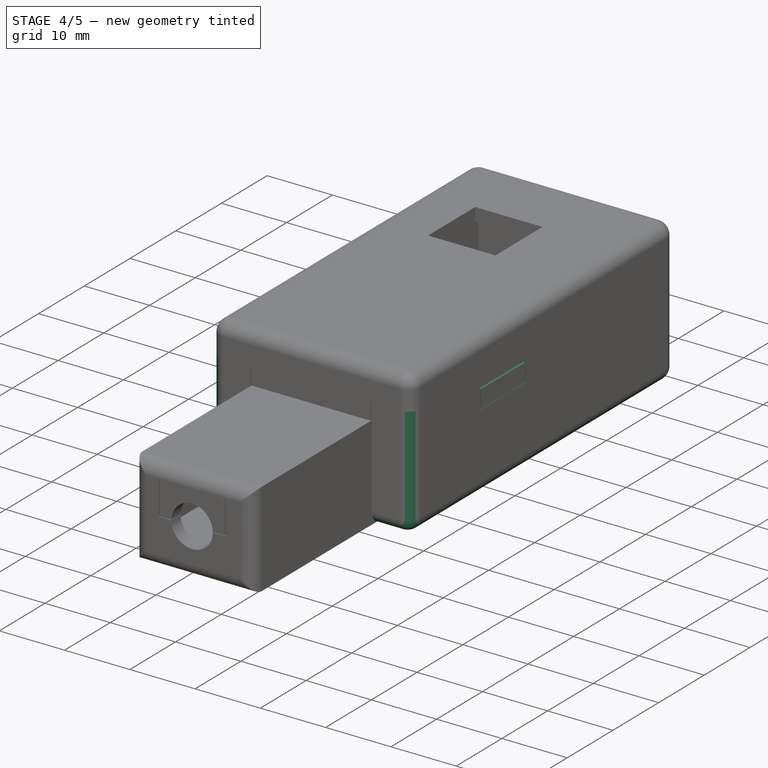
[diagram: stage 4 of 5 — iso view after this stage's code; geometry added in this stage tinted green]
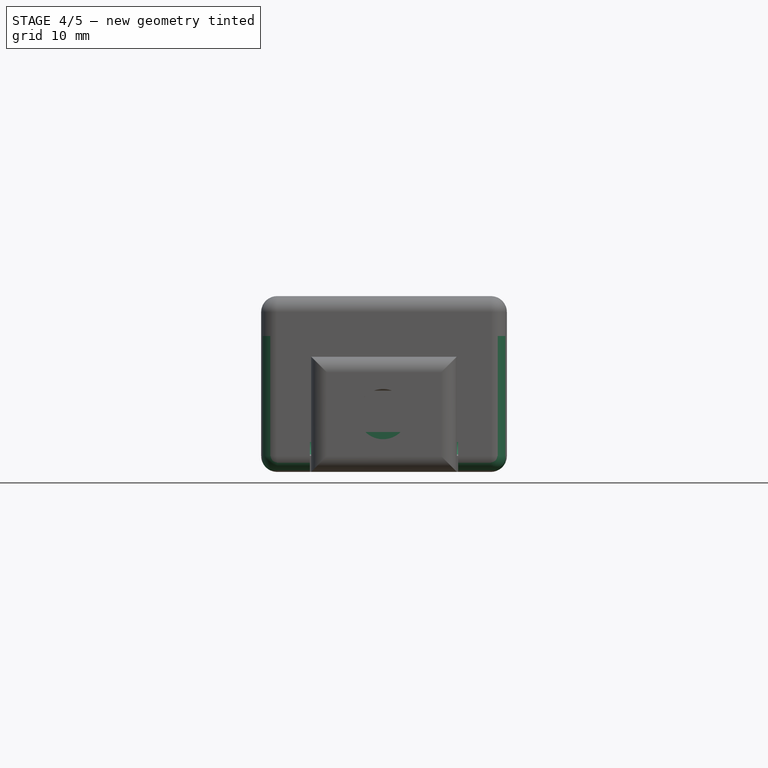
[diagram: stage 4 of 5 — front view after this stage's code; geometry added in this stage tinted green]
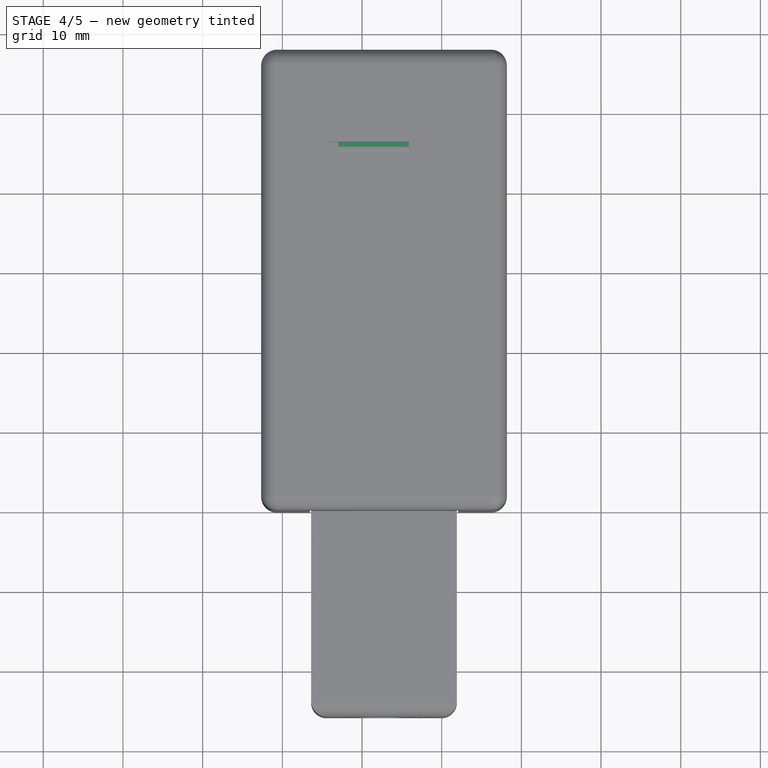
[diagram: stage 4 of 5 — top view after this stage's code; geometry added in this stage tinted green]
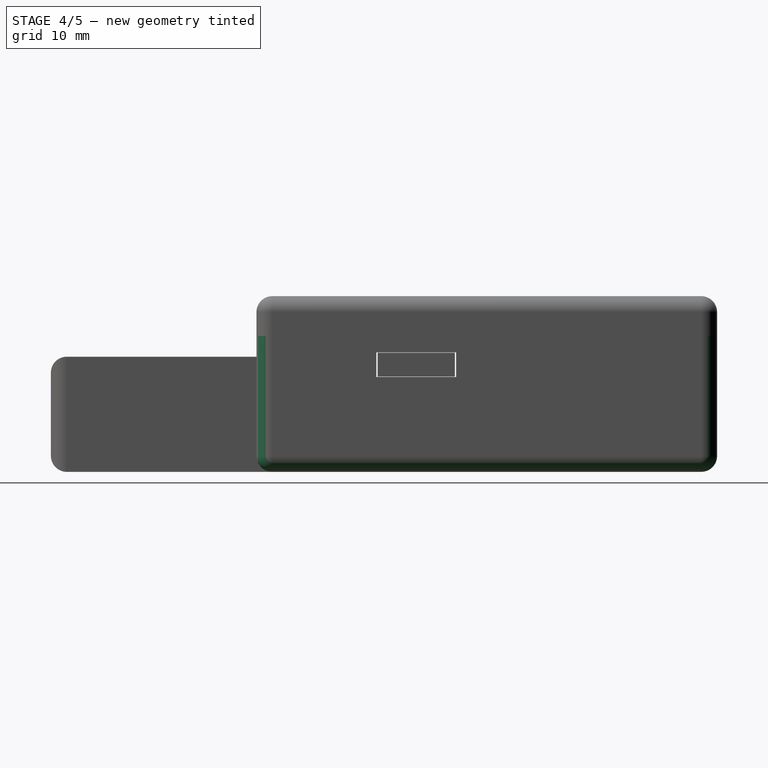
[diagram: stage 4 of 5 — right view after this stage's code; geometry added in this stage tinted green]
FEATURE [Sketcher::SketchObject] Sketch009  label="CaseASketch3"
  AttachmentOffset = pos=(0,0,9.95) rot=(0,0,1;0rad)
  MapMode = 5
  Placement = pos=(0,0,9.95) rot=(0,0,1;0rad)
  Support = -> [XY_Plane001]
  expr: Constraints[21] = Params.CASE_A_LY
  expr: Constraints[23] = 5 * Params.WALL
  expr: Constraints[19] = Params.WALL
  expr: Constraints[17] = Params.BOARD_W + Params.SPACE_XY + Params.GAP_XY
  expr: Constraints[16] = Params.SPACE_XY + Params.GAP_XY
  expr: AttachmentOffset.Base.z = Params.TOTAL_D - Params.WALL - Params.GAP_Z
  sketch-geometry (8):
    g0: LineSegment StartX=-2.65 StartY=15 StartZ=0 EndX=-0.65 EndY=15 EndZ=0
    g1: LineSegment StartX=-0.65 StartY=15 StartZ=0 EndX=-0.65 EndY=5 EndZ=0
    g2: LineSegment StartX=-0.65 StartY=5 StartZ=0 EndX=-2.65 EndY=5 EndZ=0
    g3: LineSegment StartX=-2.65 StartY=5 StartZ=0 EndX=-2.65 EndY=15 EndZ=0
    g4: LineSegment StartX=26.177 StartY=15 StartZ=0 EndX=28.177 EndY=15 EndZ=0
    g5: LineSegment StartX=28.177 StartY=15 StartZ=0 EndX=28.177 EndY=5 EndZ=0
    g6: LineSegment StartX=28.177 StartY=5 StartZ=0 EndX=26.177 EndY=5 EndZ=0
    g7: LineSegment StartX=26.177 StartY=5 StartZ=0 EndX=26.177 EndY=15 EndZ=0
  constraints (24):
    c: Coincident(g0,g1)
    c: Coincident(g1,g2)
    c: Coincident(g2,g3)
    c: Coincident(g3,g0)
    c: Horizontal(g0)
    c: Horizontal(g2)
    c: Vertical(g1)
    c: Vertical(g3)
    c: Coincident(g4,g5)
    c: Coincident(g5,g6)
    c: Coincident(g6,g7)
    c: Coincident(g7,g4)
    c: Horizontal(g4)
    c: Horizontal(g6)
    c: Vertical(g5)
    c: Vertical(g7)
    c: DistanceX(g1,g-1) = 0.65
    c: DistanceX(g-1,g6) = 26.177
    c: Equal(g0,g4)
    c: DistanceX(g0,g0) = 2
    c: Horizontal(g1,g6)
    c: DistanceY(g-1,g1) = 5
    c: Equal(g7,g1)
    c: DistanceY(g3,g3) = 10
FEATURE [PartDesign::Pocket] Pocket002  label="CaseAPocket2"
  BaseFeature = -> Pocket
  Length = 3.1
  Length2 = 100
  Profile = -> Sketch009
  Type = 0
  expr: Length = 1.5 * Params.WALL + 2 * Params.GAP_Z
FEATURE [Sketcher::SketchObject] Sketch010  label="CaseASketch4"
  AttachmentOffset = pos=(0,0,12) rot=(0,0,1;0rad)
  MapMode = 5
  Placement = pos=(0,0,12) rot=(0,0,1;0rad)
  Support = -> [XY_Plane001]
  expr: Constraints.LATCH_Y = Params.BOARD_H * 3 / 4
  expr: AttachmentOffset.Base.z = Params.TOTAL_D
  expr: Constraints.LATCH_Y2 = Params.BOARD_H + Params.WALL / 2 + Params.SPACE_XY + Params.GAP_XY
  expr: Constraints.LATCH_W = Params.BOARD_W / 4
  expr: Constraints.LATCH_H = CaseASketch1.Constraints.HEIGHT - Params.WALL
  expr: Constraints[18] = Params.BOARD_W + Params.WALL + 2 * (Params.SPACE_XY + Params.GAP_XY)
  expr: Constraints.LATCH_H2 = 3 * Params.WALL
  expr: Constraints[17] = Params.SPACE_XY + Params.GAP_XY + Params.WALL / 2
  sketch-geometry (12):
    g0: LineSegment StartX=-1.65 StartY=46.75 StartZ=0 EndX=-1.65 EndY=33.825 EndZ=0
    g1: LineSegment StartX=-1.65 StartY=33.825 StartZ=0 EndX=4.73175 EndY=33.825 EndZ=0
    g2: LineSegment StartX=4.73175 StartY=46.75 StartZ=0 EndX=-1.65 EndY=46.75 EndZ=0
    g3: LineSegment StartX=4.73175 StartY=33.825 StartZ=0 EndX=4.73175 EndY=46.75 EndZ=0
    g4: LineSegment StartX=-1.65 StartY=-3.05 StartZ=0 EndX=-1.65 EndY=-9.05 EndZ=0
    g5: LineSegment StartX=-1.65 StartY=-9.05 StartZ=0 EndX=27.177 EndY=-9.05 EndZ=0
    g6: LineSegment StartX=27.177 StartY=-9.05 StartZ=0 EndX=27.177 EndY=-3.05 EndZ=0
    g7: LineSegment StartX=27.177 StartY=-3.05 StartZ=0 EndX=-1.65 EndY=-3.05 EndZ=0
    g8: LineSegment StartX=20.7953 StartY=46.75 StartZ=0 EndX=27.177 EndY=46.75 EndZ=0
    g9: LineSegment StartX=27.177 StartY=46.75 StartZ=0 EndX=27.177 EndY=33.825 EndZ=0
    g10: LineSegment StartX=27.177 StartY=33.825 StartZ=0 EndX=20.7953 EndY=33.825 EndZ=0
    g11: LineSegment StartX=20.7953 StartY=33.825 StartZ=0 EndX=20.7953 EndY=46.75 EndZ=0
  constraints (36):
    c: Vertical(g0)
    c: Coincident(g0,g1)
    c: Coincident(g2,g0)
    c: Horizontal(g2)
    c: Vertical(g3)
    c: Vertical(g4)
    c: Coincident(g4,g5)
    c: Horizontal(g5)
    c: Coincident(g5,g6)
    c: Vertical(g6)
    c: Coincident(g6,g7)
    c: Coincident(g7,g4)
    c: Horizontal(g7)
    c: Coincident(g1,g3)
    c: Coincident(g2,g3)
    c: Horizontal(g1)
    c: Vertical(g4,g0)
    c: DistanceX(g4,g-1) = 1.65
    c: DistanceX(g7,g7) = 28.827
    c: DistanceY(g4,g0) = 55.8  'LATCH_H'
    c: DistanceY(g-1,g0) = 46.75  'LATCH_Y2'
    c: DistanceY(g-1,g0) = 33.825  'LATCH_Y'
    c: DistanceY(g4,g4) = 6  'LATCH_H2'
    c: DistanceX(g2,g2) = 6.38175  'LATCH_W'
    c: Coincident(g8,g9)
    c: Coincident(g9,g10)
    c: Coincident(g10,g11)
    c: Coincident(g11,g8)
    c: Horizontal(g8)
    c: Horizontal(g10)
    c: Vertical(g9)
    c: Vertical(g11)
    c: Horizontal(g8,g2)
    c: Equal(g11,g3)
    c: Vertical(g9,g6)
    c: Equal(g10,g1)
FEATURE [PartDesign::Pocket] Pocket003  label="CaseAPocket3"
  BaseFeature = -> Pocket002
  Length = 2.5
  Length2 = 100
  Profile = -> Sketch010
  Type = 0
  expr: Length = Params.CASE_A_L
FEATURE [Sketcher::SketchObject] Sketch016  label="CaseASketch5"
  MapMode = 5
  Support = -> [XY_Plane001]
  expr: Constraints[11] = CaseASketch1.Constraints.WIDTH - 2 * (CaseASketch2.Constraints.EDGE_W + Params.WALL)
  expr: Constraints[10] = 3 * Params.WALL
  expr: Constraints[9] = Params.USB_H - Params.USB_Y + Params.SPACE_XY + Params.GAP_XY
  expr: Constraints[8] = CaseASketch2.Constraints.EDGE_W - Params.SPACE_XY - Params.GAP_XY
  sketch-geometry (4):
    g0: LineSegment StartX=3.4635 StartY=-4.05 StartZ=0 EndX=22.0635 EndY=-4.05 EndZ=0
    g1: LineSegment StartX=22.0635 StartY=-4.05 StartZ=0 EndX=22.0635 EndY=-10.05 EndZ=0
    g2: LineSegment StartX=22.0635 StartY=-10.05 StartZ=0 EndX=3.4635 EndY=-10.05 EndZ=0
    g3: LineSegment StartX=3.4635 StartY=-10.05 StartZ=0 EndX=3.4635 EndY=-4.05 EndZ=0
  constraints (12):
    c: Coincident(g0,g1)
    c: Coincident(g1,g2)
    c: Coincident(g2,g3)
    c: Coincident(g3,g0)
    c: Horizontal(g0)
    c: Horizontal(g2)
    c: Vertical(g1)
    c: Vertical(g3)
    c: DistanceX(g-1,g0) = 3.4635
    c: DistanceY(g0,g-1) = 4.05
    c: DistanceY(g3,g3) = 6
    c: DistanceX(g0,g0) = 18.6
FEATURE [PartDesign::Pocket] Pocket006  label="CaseAPocket4"
  BaseFeature = -> Pocket003
  Length = 5
  Length2 = 100
  Profile = -> Sketch016
  Type = 1
FEATURE [Sketcher::SketchObject] Sketch019  label="CaseASketch6"
  AttachmentOffset = pos=(0,0,-3.05) rot=(0,0,1;0rad)
  MapMode = 5
  Placement = pos=(0,0,-3.05) rot=(0,0,1;0rad)
  Support = -> [XY_Plane001]
  expr: Constraints[9] = Params.BOARD_W
  expr: AttachmentOffset.Base.z = -(Params.SPACE_Z + Params.GAP_Z)
  sketch-geometry (8):
    g0: LineSegment StartX=0 StartY=0 StartZ=0 EndX=25.527 EndY=0 EndZ=0
    g1: LineSegment StartX=25.527 StartY=0 StartZ=0 EndX=25.527 EndY=2.5 EndZ=0
    g2: LineSegment StartX=25.527 StartY=2.5 StartZ=0 EndX=0 EndY=2.5 EndZ=0
    g3: LineSegment StartX=0 StartY=2.5 StartZ=0 EndX=0 EndY=0 EndZ=0
    g4: LineSegment StartX=7 StartY=37 StartZ=0 EndX=19 EndY=37 EndZ=0
    g5: LineSegment StartX=19 StartY=37 StartZ=0 EndX=19 EndY=38 EndZ=0
    g6: LineSegment StartX=19 StartY=38 StartZ=0 EndX=7 EndY=38 EndZ=0
    g7: LineSegment StartX=7 StartY=38 StartZ=0 EndX=7 EndY=37 EndZ=0
  constraints (23):
    c: Coincident(g0,g1)
    c: Coincident(g1,g2)
    c: Coincident(g2,g3)
    c: Coincident(g3,g0)
    c: Horizontal(g0)
    c: Horizontal(g2)
    c: Vertical(g1)
    c: Vertical(g3)
    c: Coincident(g0,g-1)
    c: DistanceX(g0,g0) = 25.527
    c: DistanceY(g3,g3) = 2.5
    c: Coincident(g4,g5)
    c: Coincident(g5,g6)
    c: Coincident(g6,g7)
    c: Coincident(g7,g4)
    c: Horizontal(g4)
    c: Horizontal(g6)
    c: Vertical(g5)
    c: Vertical(g7)
    c: DistanceX(g2,g4) = 7
    c: DistanceY(g0,g4) = 37
    c: DistanceY(g7,g7) = 1
    c: DistanceX(g4,g4) = 12
FEATURE [PartDesign::Pad] Pad012  label="CaseAPad2"
  BaseFeature = -> Pocket006
  Length = 3
  Length2 = 100
  Profile = -> Sketch019
  Refine = true
  Type = 0
  expr: Length = Params.SPACE_Z
FEATURE [PartDesign::Body] Body  label="Board"
  Group = -> [Sketch,Pad,Sketch001,Pad001,Sketch002,Pad002,Sketch003,Pad003,Sketch004,Pad004,Sketch005,Pad005,Sketch028,Pad018]
  Origin = -> Origin
  Tip = -> Pad018
FEATURE [Sketcher::SketchObject] Sketch029  label="BoltSketch1"
  AttachmentOffset = pos=(0,0,6.9) rot=(0,0,1;0rad)
  MapMode = 5
  Placement = pos=(0,0,6.9) rot=(0,0,1;0rad)
  Support = -> [XY_Plane008]
  expr: Constraints[11] = CaseASketch1.Constraints.X
  expr: Constraints[10] = CaseASketch1.Constraints.WIDTH
  expr: Constraints[9] = CaseBSketch6.Constraints.INNER_W - 2 * Params.GAP_XY
  expr: Constraints[8] = Params.CASE_A_LY + Params.GAP_XY
  expr: AttachmentOffset.Base.z = Params.TOTAL_D - 2.5 * Params.WALL - 2 * Params.GAP_Z
  sketch-geometry (4):
    g0: LineSegment StartX=-2.65 StartY=5.15 StartZ=0 EndX=28.177 EndY=5.15 EndZ=0
    g1: LineSegment StartX=28.177 StartY=5.15 StartZ=0 EndX=28.177 EndY=14.85 EndZ=0
    g2: LineSegment StartX=28.177 StartY=14.85 StartZ=0 EndX=-2.65 EndY=14.85 EndZ=0
    g3: LineSegment StartX=-2.65 StartY=14.85 StartZ=0 EndX=-2.65 EndY=5.15 EndZ=0
  constraints (12):
    c: Coincident(g0,g1)
    c: Coincident(g1,g2)
    c: Coincident(g2,g3)
    c: Coincident(g3,g0)
    c: Horizontal(g0)
    c: Horizontal(g2)
    c: Vertical(g1)
    c: Vertical(g3)
    c: DistanceY(g-1,g0) = 5.15
    c: DistanceY(g3,g3) = 9.7
    c: DistanceX(g0,g0) = 30.827
    c: DistanceX(g0,g-1) = 2.65
FEATURE [PartDesign::Pad] Pad019  label="BoltPad1"
  Length = 2.8
  Length2 = 100
  Profile = -> Sketch029
  Type = 0
  expr: Length = 1.5 * Params.WALL - Params.CASE_A_BL
FEATURE [Sketcher::SketchObject] Sketch030  label="BoltSketch2"
  AttachmentOffset = pos=(0,0,9.7) rot=(0,0,1;0rad)
  MapMode = 5
  Placement = pos=(0,0,9.7) rot=(0,0,1;0rad)
  Support = -> [XY_Plane008]
  expr: Constraints[11] = Params.CASE_A_LY + Params.GAP_XY
  expr: Constraints[10] = CaseBSketch6.Constraints.INNER_W - 2 * Params.GAP_XY
  expr: Constraints[9] = Params.BOARD_W + 2 * Params.SPACE_XY
  expr: Constraints[8] = Params.SPACE_XY
  expr: AttachmentOffset.Base.z = Params.TOTAL_D - Params.WALL - Params.CASE_A_BL - 2 * Params.GAP_Z
  sketch-geometry (4):
    g0: LineSegment StartX=-0.5 StartY=14.85 StartZ=0 EndX=26.027 EndY=14.85 EndZ=0
    g1: LineSegment StartX=26.027 StartY=14.85 StartZ=0 EndX=26.027 EndY=5.15 EndZ=0
    g2: LineSegment StartX=26.027 StartY=5.15 StartZ=0 EndX=-0.5 EndY=5.15 EndZ=0
    g3: LineSegment StartX=-0.5 StartY=5.15 StartZ=0 EndX=-0.5 EndY=14.85 EndZ=0
  constraints (12):
    c: Coincident(g0,g1)
    c: Coincident(g1,g2)
    c: Coincident(g2,g3)
    c: Coincident(g3,g0)
    c: Horizontal(g0)
    c: Horizontal(g2)
    c: Vertical(g1)
    c: Vertical(g3)
    c: DistanceX(g2,g-1) = 0.5
    c: DistanceX(g2,g2) = 26.527
    c: DistanceY(g1,g1) = 9.7
    c: DistanceY(g-1,g2) = 5.15
FEATURE [PartDesign::Pad] Pad020
  BaseFeature = -> Pad019
  Length = 0.2
  Length2 = 100
  Profile = -> Sketch030
  Type = 0
  expr: Length = Params.CASE_A_BL
FEATURE [PartDesign::Body] Body008  label="Bolt"
  Group = -> [Sketch029,Pad019,Sketch030,Pad020]
  Origin = -> Origin008
  Tip = -> Pad020
FEATURE [PartDesign::Fillet] Fillet  label="CaseAFillet"
  Base = -> Pad012 [Edge125,Edge127,Edge129,Edge131,Edge22,Edge51,Edge21,Edge20,Edge56,Edge23,Edge57,Edge17,Edge24]
  BaseFeature = -> Pad012
  Radius = 1.99
  expr: Radius = Params.FILLET_OUT
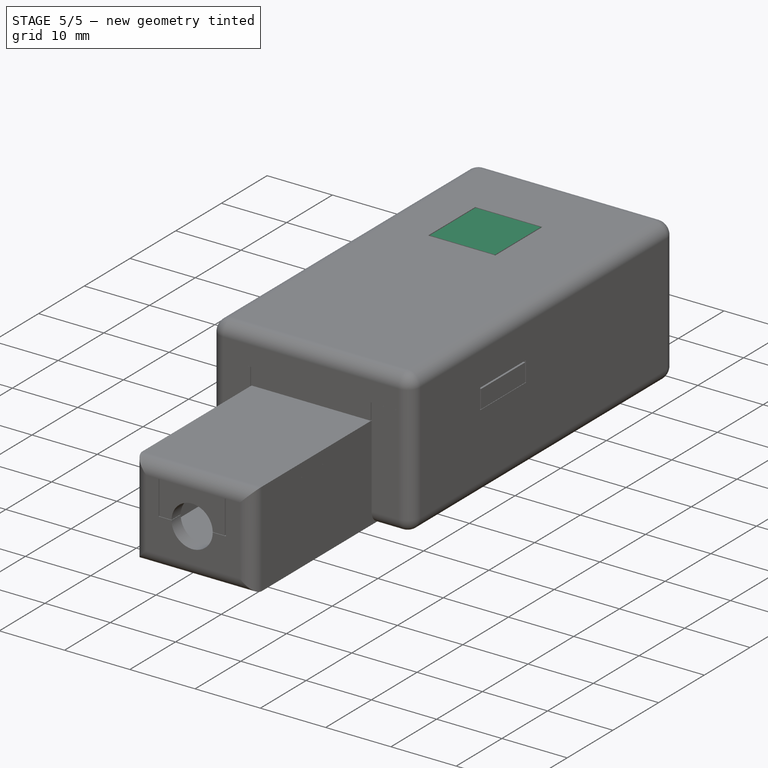
[diagram: stage 5 of 5 — iso view after this stage's code; geometry added in this stage tinted green]
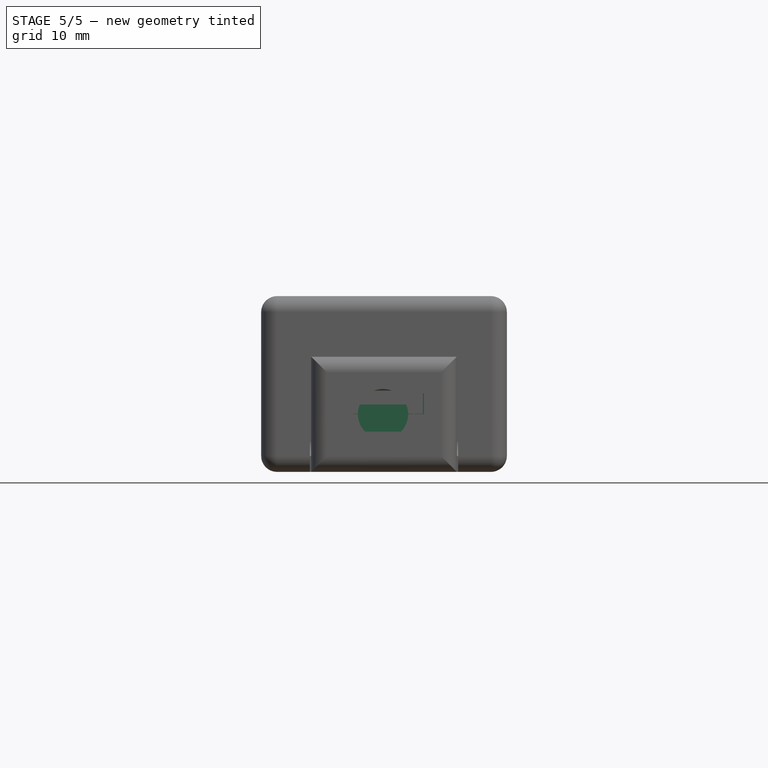
[diagram: stage 5 of 5 — front view after this stage's code; geometry added in this stage tinted green]
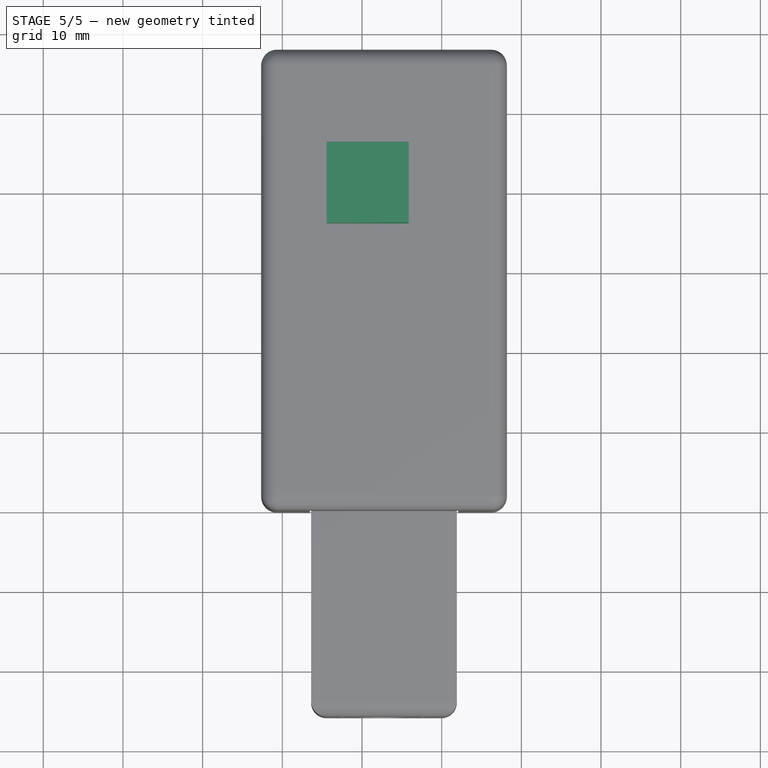
[diagram: stage 5 of 5 — top view after this stage's code; geometry added in this stage tinted green]
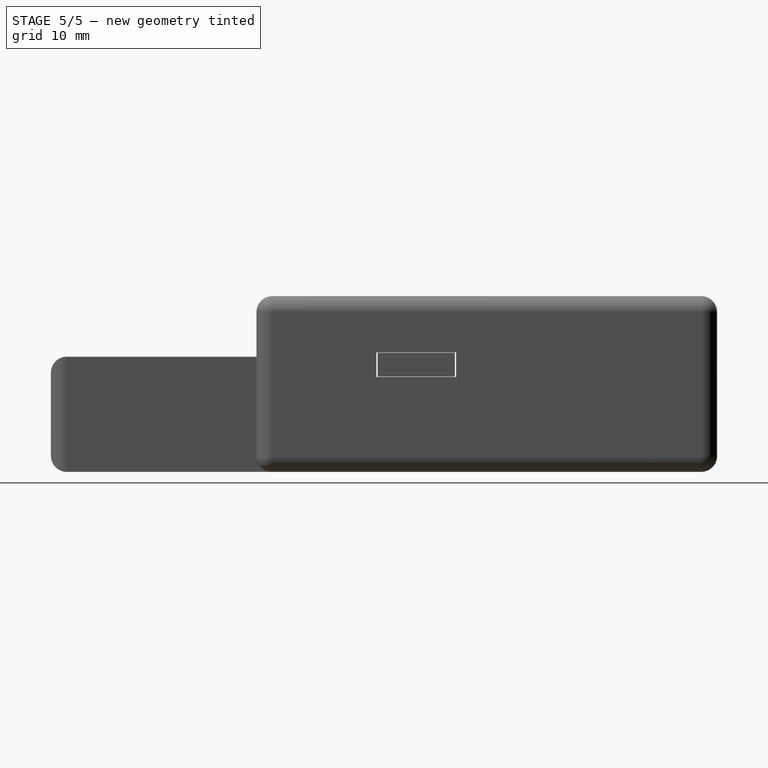
[diagram: stage 5 of 5 — right view after this stage's code; geometry added in this stage tinted green]
FEATURE [Spreadsheet::Sheet] Spreadsheet  label="Params"
  cells = A1=Key; B1=Value; C1=Comment; D1=Seen From; E1=Comment; A2=SPACE_XY; B2(SPACE_XY)==0.5mm; C2=spacing of the case around the object in X/Y direction; D2=top view; A3=SPACE_Z; B3(SPACE_Z)==3mm; C3=spacing of the case around the object in Z direction; D3=top view; A4=WALL; B4(WALL)==2mm; C4=thickness of the case; D4=top view; A5=GAP_XY; B5(GAP_XY)==0.15mm; C5=3D printer tolerance in X/Y direction; D5=top view; A6=GAP_Z; B6(GAP_Z)==0.05mm; C6=3D printer tolerance in Z direction; D6=top view; A7=NOZZLE; B7(NOZZLE)==0.4mm; C7=3D printer nozzle size; D7=top view; A8=PIN_X; B8(PIN_X)==0.05in; C8=offset of the bottom left corner pin in X direction; D8=top view; A9=PIN_Y; B9(PIN_Y)==0.06in; C9=offset of the bottom left corner pin in Y direction; D9=top view; A10=BOARD_W; B10(BOARD_W)==25.527mm; C10=width of the board; D10=top view; A11=BOARD_H; B11(BOARD_H)==45.1mm; C11=height of the board including LCD connector (not USB); D11=top view; A12=BOARD_D; B12(BOARD_D)==1mm; C12=thickness of the board; D12=top view; A13=SWITCH_W; B13(SWITCH_W)==10mm; C13=width of the switch; D13=top view; A14=SWITCH_H; B14(SWITCH_H)==10mm; C14=height of the switch; D14=top view; A15=SWITCH_D; B15(SWITCH_D)==5mm; C15=depth of the switch; D15=top view; A16=SWITCH_X; B16(SWITCH_X)==0.175in; C16=offset of the switch in X direction (bottom left corner pin); D16=top view; E16=0,225in or 0,175in; A17=SWITCH_Y; B17(SWITCH_Y)==0.965in; C17=offset of the switch in Y direction (bottom left corner pin); D17=top view; A18=TOTAL_D; B18(TOTAL_D)==12mm; C18=total depth (board + switch board) without pin ends; D18=top view; A19=BOARD_SPACE; B19(BOARD_SPACE)==9.4mm; C19=spacing between board and switch board; D19=top view; A20=TF_X; B20(TF_X)==15.337mm; C20=offset of the TF c ard socket in X direction (bottom left corner pin); D20=top view; A21=TF_Y; B21(TF_Y)==4.425mm; C21=offset of the TF c ard socket in Y direction (bottom left corner pin); D21=top view; A22=TF_W; B22(TF_W)==5.3mm; C22=with of the TF card socket; D22=top view; A23=TF_H; B23(TF_H)==12.4mm; C23=height of the TF card socket; D23=top view; A24=TF_D; B24(TF_D)==3.8mm; C24=depth of the TF card socket; D24=top view; A25=USB_X; B25(USB_X)==0.3in; C25=offset of the micro USB connector (bottom left corner pin); D25=top view; A26=USB_Y; B26(USB_Y)==2.35mm; C26=offset of the micro USB connector (bottom left corner pin); D26=top view; A27=USB_W; B27(USB_W)==7.5mm; C27=width of the micro USB connector; D27=top view; A28=USB_H; B28(USB_H)==5.75mm; C28=height of the micro USB connector; D28=top view; A29=USB_D; B29(USB_D)==2.4mm; C29=depth of the micro USB connector; D29=top view; A30=USB_GAP_W; B30(USB_GAP_W)==12mm; C30=gap width for the USB connector; D30=top view; A31=USB_CON_H; B31(USB_CON_H)==29mm; C31=height of the micro USB cable connector; D31=top view; A32=USB_CON_D; B32(USB_CON_D)==7mm; C32=depth of the micro USB cable connector; D32=top view; A33=USB_CABLE_W; B33(USB_CABLE_W)==6mm; C33=thickness of the USB cable; D33=top view; A34=LED_X; B34(LED_X)==20.34mm; C34=offset of the LED in X direction (bottom left corner pin); D34=top view; A35=LED_Y; B35(LED_Y)==39.13mm; C35=offset of the LED in Y direction (bottom left corner pin); D35=top view; A36=LED_W; B36(LED_W)==3.5mm; C36=width of the LED; D36=top view; A37=LED_H; B37(LED_H)==2.8mm; C37=height of the LED; D37=top view; A38=LED_D; B38(LED_D)==1.75mm; C38=depth of the LED; D38=top view; A39=CASE_A_BL; B39(CASE_A_BL)==0.2mm; C39=extra height of the vertical bold hole; D39=front view; A40=CASE_A_L; B40(CASE_A_L)==2.5mm; C40=depth of the case latch; D40=top view; A41=CASE_A_LY; B41(CASE_A_LY)==5mm; C41=offset of the case side latch in Y direction; D41=top view; A42=FILLET_OUT; B42(FILLET_OUT)==1.99mm; C42=fillet at the outer border of the case; D42=top view
FEATURE [Sketcher::SketchObject] Sketch  label="BoardSketch"
  MapMode = 5
  Support = -> [XY_Plane]
  expr: Constraints[10] = Params.BOARD_W
  expr: Constraints[9] = Params.BOARD_H
  sketch-geometry (4):
    g0: LineSegment StartX=0 StartY=45.1 StartZ=0 EndX=25.527 EndY=45.1 EndZ=0
    g1: LineSegment StartX=25.527 StartY=45.1 StartZ=0 EndX=25.527 EndY=0 EndZ=0
    g2: LineSegment StartX=25.527 StartY=0 StartZ=0 EndX=0 EndY=0 EndZ=0
    g3: LineSegment StartX=0 StartY=0 StartZ=0 EndX=0 EndY=45.1 EndZ=0
  constraints (11):
    c: Coincident(g0,g1)
    c: Coincident(g1,g2)
    c: Coincident(g2,g3)
    c: Coincident(g3,g0)
    c: Horizontal(g0)
    c: Horizontal(g2)
    c: Vertical(g1)
    c: Vertical(g3)
    c: Coincident(g-1,g2)
    c: DistanceY(g3,g3) = 45.1
    c: DistanceX(g2,g2) = 25.527
FEATURE [PartDesign::Pad] Pad  label="BoardPad"
  Length = 1
  Length2 = 100
  Profile = -> Sketch
  Type = 0
  expr: Length = Params.BOARD_D
FEATURE [Sketcher::SketchObject] Sketch001  label="LedSketch"
  AttachmentOffset = pos=(0,0,1) rot=(0,0,1;0rad)
  MapMode = 5
  Placement = pos=(0,0,1) rot=(0,0,1;0rad)
  Support = -> [XY_Plane]
  expr: Constraints[11] = Params.LED_W
  expr: Constraints[10] = Params.LED_H
  expr: Constraints[9] = Params.PIN_Y + Params.LED_Y
  expr: Constraints[8] = Params.PIN_X + Params.LED_X
  expr: AttachmentOffset.Base.z = Params.BOARD_D
  sketch-geometry (4):
    g0: LineSegment StartX=21.61 StartY=43.454 StartZ=0 EndX=25.11 EndY=43.454 EndZ=0
    g1: LineSegment StartX=25.11 StartY=43.454 StartZ=0 EndX=25.11 EndY=40.654 EndZ=0
    g2: LineSegment StartX=25.11 StartY=40.654 StartZ=0 EndX=21.61 EndY=40.654 EndZ=0
    g3: LineSegment StartX=21.61 StartY=40.654 StartZ=0 EndX=21.61 EndY=43.454 EndZ=0
  constraints (12):
    c: Coincident(g0,g1)
    c: Coincident(g1,g2)
    c: Coincident(g2,g3)
    c: Coincident(g3,g0)
    c: Horizontal(g0)
    c: Horizontal(g2)
    c: Vertical(g1)
    c: Vertical(g3)
    c: DistanceX(g-1,g2) = 21.61
    c: DistanceY(g-1,g2) = 40.654
    c: DistanceY(g1,g1) = 2.8
    c: DistanceX(g0,g0) = 3.5
FEATURE [PartDesign::Pad] Pad001  label="LedPad"
  BaseFeature = -> Pad
  Length = 1.75
  Length2 = 100
  Profile = -> Sketch001
  Type = 0
  expr: Length = Params.LED_D
FEATURE [Sketcher::SketchObject] Sketch002  label="UsbSketch"
  AttachmentOffset = pos=(0,0,1) rot=(0,0,1;0rad)
  MapMode = 5
  Placement = pos=(0,0,1) rot=(0,0,1;0rad)
  Support = -> [XY_Plane]
  expr: Constraints[11] = Params.USB_H
  expr: Constraints[10] = Params.USB_W
  expr: Constraints[9] = Params.PIN_Y + Params.USB_Y
  expr: Constraints[8] = Params.PIN_X + Params.USB_X
  expr: AttachmentOffset.Base.z = Params.BOARD_D
  sketch-geometry (4):
    g0: LineSegment StartX=8.89 StartY=3.874 StartZ=0 EndX=16.39 EndY=3.874 EndZ=0
    g1: LineSegment StartX=16.39 StartY=3.874 StartZ=0 EndX=16.39 EndY=-1.876 EndZ=0
    g2: LineSegment StartX=16.39 StartY=-1.876 StartZ=0 EndX=8.89 EndY=-1.876 EndZ=0
    g3: LineSegment StartX=8.89 StartY=-1.876 StartZ=0 EndX=8.89 EndY=3.874 EndZ=0
  constraints (12):
    c: Coincident(g0,g1)
    c: Coincident(g1,g2)
    c: Coincident(g2,g3)
    c: Coincident(g3,g0)
    c: Horizontal(g0)
    c: Horizontal(g2)
    c: Vertical(g1)
    c: Vertical(g3)
    c: DistanceX(g-1,g0) = 8.89
    c: DistanceY(g-1,g0) = 3.874
    c: DistanceX(g2,g2) = 7.5
    c: DistanceY(g1,g1) = 5.75
FEATURE [PartDesign::Pad] Pad002  label="UsbPad"
  BaseFeature = -> Pad001
  Length = 2.4
  Length2 = 100
  Profile = -> Sketch002
  Type = 0
  expr: Length = Params.USB_D
FEATURE [Sketcher::SketchObject] Sketch003  label="PinSketch"
  AttachmentOffset = pos=(0,0,1) rot=(0,0,1;0rad)
  MapMode = 5
  Placement = pos=(0,0,1) rot=(0,0,1;0rad)
  Support = -> [XY_Plane]
  expr: Constraints[21] = Params.BOARD_W
  expr: AttachmentOffset.Base.z = Params.BOARD_D
  sketch-geometry (8):
    g0: LineSegment StartX=0 StartY=38.1 StartZ=0 EndX=2.54 EndY=38.1 EndZ=0
    g1: LineSegment StartX=2.54 StartY=38.1 StartZ=0 EndX=2.54 EndY=20.32 EndZ=0
    g2: LineSegment StartX=2.54 StartY=20.32 StartZ=0 EndX=0 EndY=20.32 EndZ=0
    g3: LineSegment StartX=0 StartY=20.32 StartZ=0 EndX=0 EndY=38.1 EndZ=0
    g4: LineSegment StartX=22.987 StartY=38.1 StartZ=0 EndX=25.527 EndY=38.1 EndZ=0
    g5: LineSegment StartX=25.527 StartY=38.1 StartZ=0 EndX=25.527 EndY=20.32 EndZ=0
    g6: LineSegment StartX=25.527 StartY=20.32 StartZ=0 EndX=22.987 EndY=20.32 EndZ=0
    g7: LineSegment StartX=22.987 StartY=20.32 StartZ=0 EndX=22.987 EndY=38.1 EndZ=0
  constraints (24):
    c: Coincident(g0,g1)
    c: Coincident(g1,g2)
    c: Coincident(g2,g3)
    c: Coincident(g3,g0)
    c: Horizontal(g0)
    c: Horizontal(g2)
    c: Vertical(g1)
    c: Vertical(g3)
    c: Coincident(g4,g5)
    c: Coincident(g5,g6)
    c: Coincident(g6,g7)
    c: Coincident(g7,g4)
    c: Horizontal(g4)
    c: Horizontal(g6)
    c: Vertical(g5)
    c: Vertical(g7)
    c: Horizontal(g4,g0)
    c: Horizontal(g6,g1)
    c: Equal(g0,g4)
    c: DistanceX(g0,g0) = 2.54
    c: Vertical(g2,g-1)
    c: DistanceX(g-1,g5) = 25.527
    c: DistanceY(g-1,g2) = 20.32
    c: DistanceY(g3,g3) = 17.78
FEATURE [PartDesign::Pad] Pad003  label="PinPad"
  BaseFeature = -> Pad002
  Length = 9.4
  Length2 = 100
  Profile = -> Sketch003
  Type = 0
  expr: Length = Params.BOARD_SPACE
FEATURE [Sketcher::SketchObject] Sketch004  label="SwitchBoardSketch"
  AttachmentOffset = pos=(0,0,10.4) rot=(0,0,1;0rad)
  MapMode = 5
  Placement = pos=(0,0,10.4) rot=(0,0,1;0rad)
  Support = -> [XY_Plane]
  expr: Constraints[9] = Params.BOARD_W
  expr: AttachmentOffset.Base.z = Params.BOARD_D + Params.BOARD_SPACE
  sketch-geometry (4):
    g0: LineSegment StartX=0 StartY=20.32 StartZ=0 EndX=25.527 EndY=20.32 EndZ=0
    g1: LineSegment StartX=25.527 StartY=20.32 StartZ=0 EndX=25.527 EndY=38.1 EndZ=0
    g2: LineSegment StartX=25.527 StartY=38.1 StartZ=0 EndX=0 EndY=38.1 EndZ=0
    g3: LineSegment StartX=0 StartY=38.1 StartZ=0 EndX=0 EndY=20.32 EndZ=0
  constraints (12):
    c: Coincident(g0,g1)
    c: Coincident(g1,g2)
    c: Coincident(g2,g3)
    c: Coincident(g3,g0)
    c: Horizontal(g0)
    c: Horizontal(g2)
    c: Vertical(g1)
    c: Vertical(g3)
    c: DistanceY(g3,g3) = 17.78
    c: DistanceX(g2,g2) = 25.527
    c: Vertical(g0,g-1)
    c: DistanceY(g-1,g0) = 20.32
FEATURE [PartDesign::Pad] Pad004  label="SwitchBoardPad"
  BaseFeature = -> Pad003
  Length = 1.6
  Length2 = 100
  Profile = -> Sketch004
  Type = 0
  expr: Length = Params.TOTAL_D - Params.BOARD_D - Params.BOARD_SPACE
FEATURE [Sketcher::SketchObject] Sketch005  label="SwitchSketch"
  AttachmentOffset = pos=(0,0,12) rot=(0,0,1;0rad)
  MapMode = 5
  Placement = pos=(0,0,12) rot=(0,0,1;0rad)
  Support = -> [XY_Plane]
  expr: Constraints[11] = Params.SWITCH_H
  expr: Constraints[10] = Params.SWITCH_W
  expr: Constraints[9] = Params.PIN_Y + Params.SWITCH_Y
  expr: Constraints[8] = Params.PIN_X + Params.SWITCH_X
  expr: AttachmentOffset.Base.z = Params.TOTAL_D
  sketch-geometry (4):
    g0: LineSegment StartX=5.715 StartY=36.035 StartZ=0 EndX=15.715 EndY=36.035 EndZ=0
    g1: LineSegment StartX=15.715 StartY=36.035 StartZ=0 EndX=15.715 EndY=26.035 EndZ=0
    g2: LineSegment StartX=15.715 StartY=26.035 StartZ=0 EndX=5.715 EndY=26.035 EndZ=0
    g3: LineSegment StartX=5.715 StartY=26.035 StartZ=0 EndX=5.715 EndY=36.035 EndZ=0
  constraints (12):
    c: Coincident(g0,g1)
    c: Coincident(g1,g2)
    c: Coincident(g2,g3)
    c: Coincident(g3,g0)
    c: Horizontal(g0)
    c: Horizontal(g2)
    c: Vertical(g1)
    c: Vertical(g3)
    c: DistanceX(g-1,g2) = 5.715
    c: DistanceY(g-1,g2) = 26.035
    c: DistanceX(g0,g0) = 10
    c: DistanceY(g1,g1) = 10
FEATURE [PartDesign::Pad] Pad005  label="SwitchPad"
  BaseFeature = -> Pad004
  Length = 5
  Length2 = 100
  Profile = -> Sketch005
  Type = 0
  expr: Length = Params.SWITCH_D
FEATURE [Sketcher::SketchObject] Sketch028  label="TfSocketSketch"
  AttachmentOffset = pos=(0,0,1) rot=(0,0,1;0rad)
  MapMode = 5
  Placement = pos=(0,0,1) rot=(0,0,1;0rad)
  Support = -> [XY_Plane]
  expr: Constraints[11] = Params.PIN_Y + Params.TF_Y
  expr: Constraints[10] = Params.TF_H
  expr: Constraints[9] = Params.TF_W
  expr: Constraints[8] = Params.PIN_X + Params.TF_X
  expr: AttachmentOffset.Base.z = Params.BOARD_D
  sketch-geometry (4):
    g0: LineSegment StartX=16.607 StartY=18.349 StartZ=0 EndX=21.907 EndY=18.349 EndZ=0
    g1: LineSegment StartX=21.907 StartY=18.349 StartZ=0 EndX=21.907 EndY=5.949 EndZ=0
    g2: LineSegment StartX=21.907 StartY=5.949 StartZ=0 EndX=16.607 EndY=5.949 EndZ=0
    g3: LineSegment StartX=16.607 StartY=5.949 StartZ=0 EndX=16.607 EndY=18.349 EndZ=0
  constraints (12):
    c: Coincident(g0,g1)
    c: Coincident(g1,g2)
    c: Coincident(g2,g3)
    c: Coincident(g3,g0)
    c: Horizontal(g0)
    c: Horizontal(g2)
    c: Vertical(g1)
    c: Vertical(g3)
    c: DistanceX(g-1,g0) = 16.607
    c: DistanceX(g2,g2) = 5.3
    c: DistanceY(g1,g1) = 12.4
    c: DistanceY(g-1,g2) = 5.949
FEATURE [PartDesign::Pad] Pad018  label="TfSocketPad"
  BaseFeature = -> Pad005
  Length = 3.8
  Length2 = 100
  Profile = -> Sketch028
  Type = 0
  expr: Length = Params.TF_D
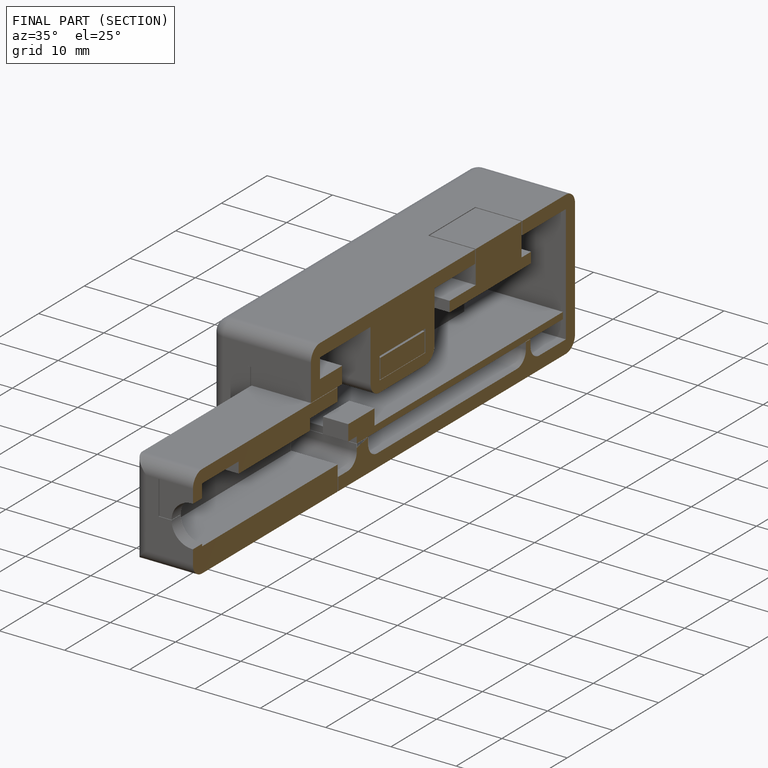
[diagram: finished part — half-section view (interior)]
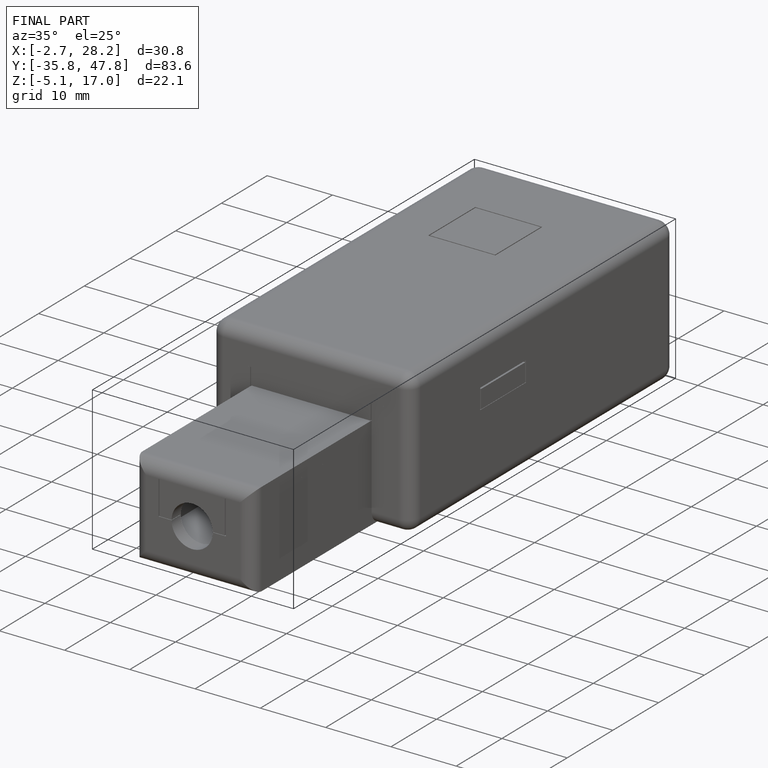
[diagram: finished part — iso view with bounding-box wireframe]
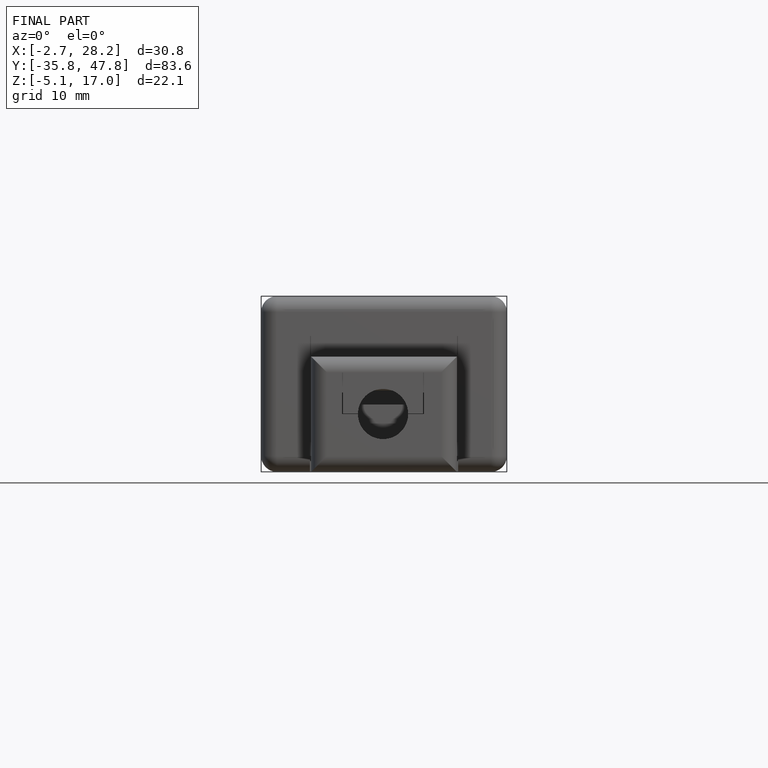
[diagram: finished part — front view with bounding-box wireframe]
